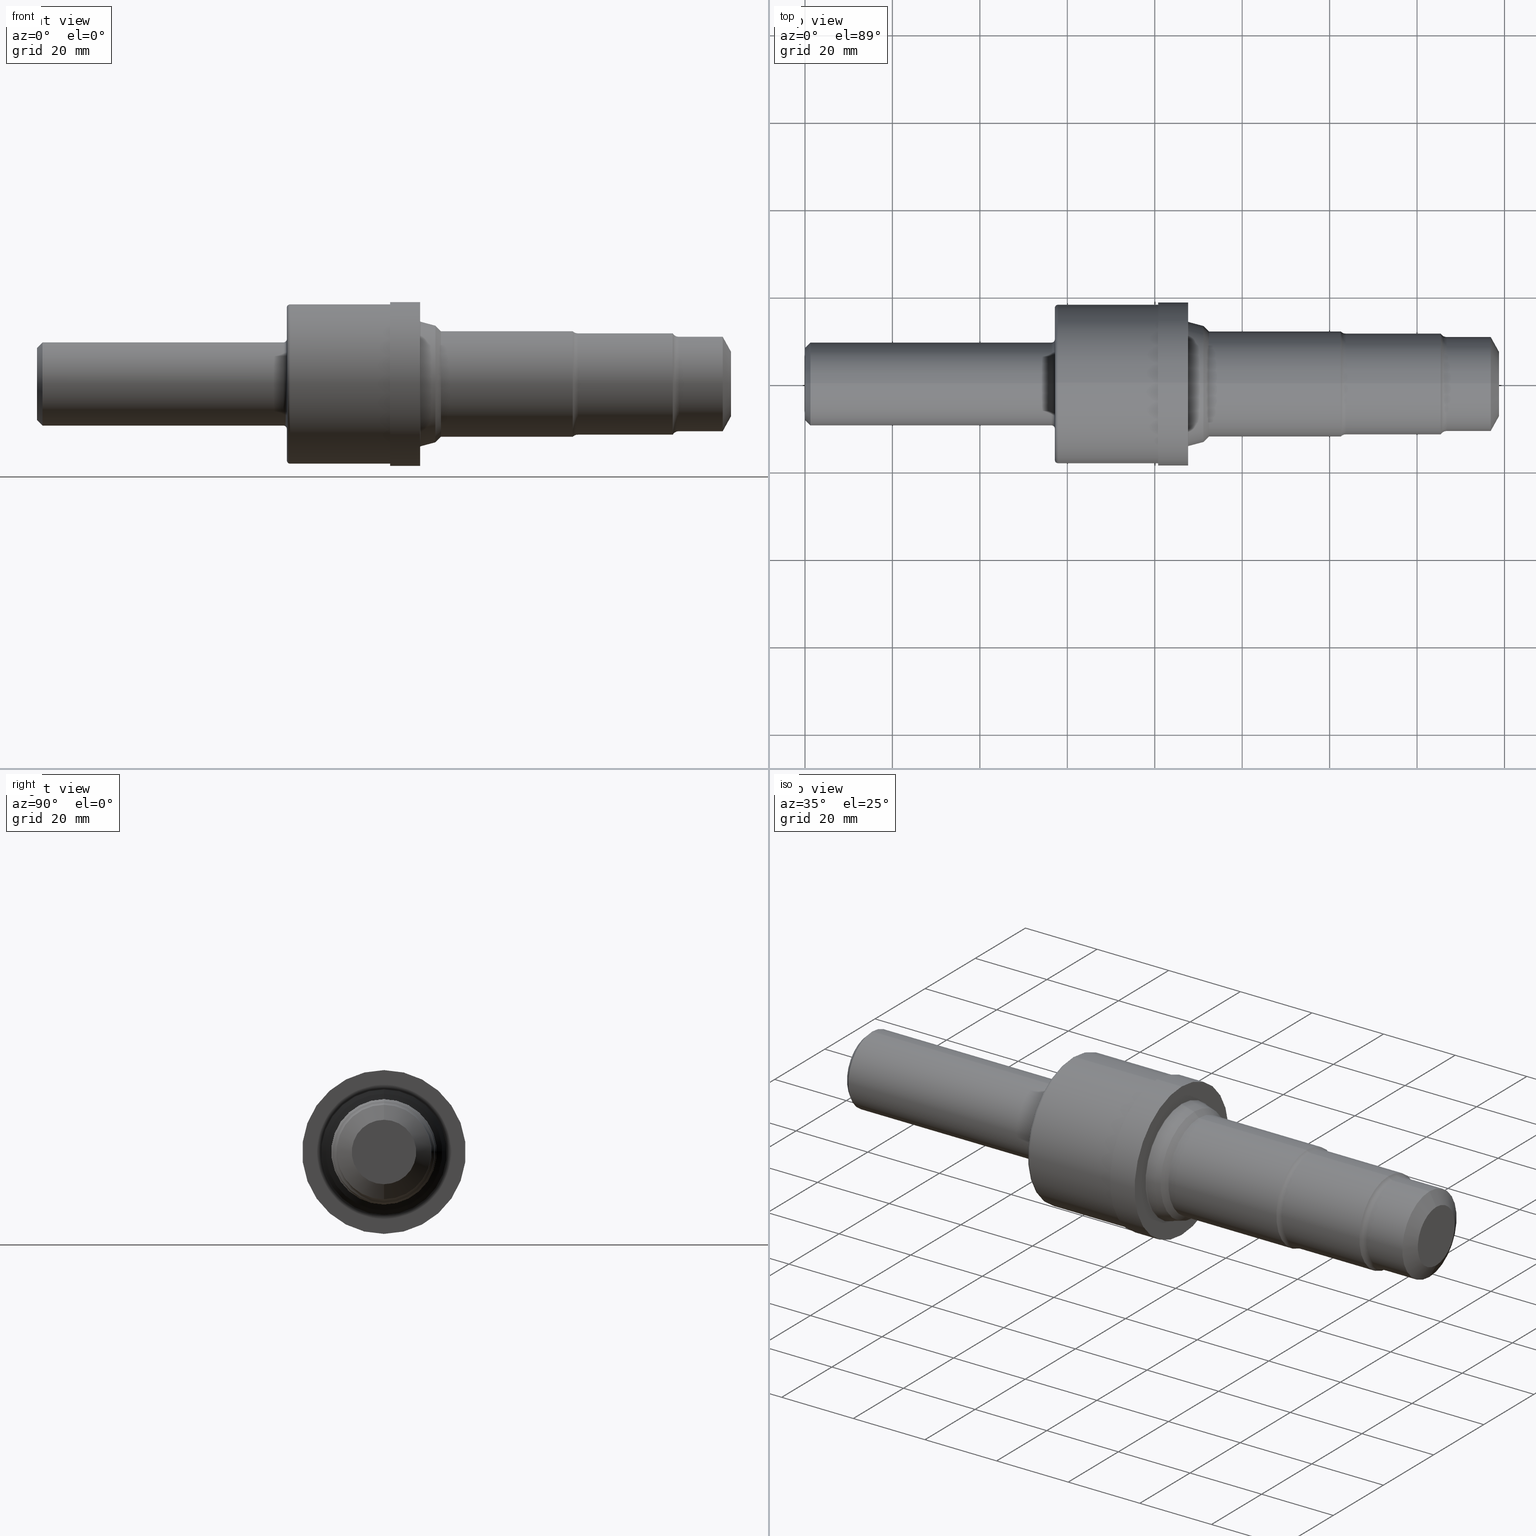
[diagram: canonical four-view strip — front | top / right | iso, engineering-drawing reading convention]
A machine part, canonical four-view strip (front | top / right | iso — engineering-drawing reading convention). The complete STEP part file that produces these views, byte-faithful:
ISO-10303-21;
HEADER;
FILE_DESCRIPTION (( 'STEP AP214' ),
    '1' );
FILE_NAME ('C-12-3-ROUGH-X8.STEP',
    '2020-02-03T22:08:16',
    ( '' ),
    ( '' ),
    'SwSTEP 2.0',
    'SolidWorks 2018',
    '' );
FILE_SCHEMA (( 'AUTOMOTIVE_DESIGN' ));
ENDSEC;

DATA;
#1 = CARTESIAN_POINT ( 'NONE',  ( 0.05000000000000000278, 4.590588526603853748E-17, 0.3748500000000000165 ) ) ;
#2 = DIRECTION ( 'NONE',  ( -1.000000000000000000, -0.0000000000000000000, -0.0000000000000000000 ) ) ;
#3 = AXIS2_PLACEMENT_3D ( 'NONE', #367, #142, #677 ) ;
#4 = AXIS2_PLACEMENT_3D ( 'NONE', #690, #40, #780 ) ;
#5 = CARTESIAN_POINT ( 'NONE',  ( 0.0000000000000000000, 0.0000000000000000000, 0.0000000000000000000 ) ) ;
#6 = VERTEX_POINT ( 'NONE', #834 ) ;
#7 = ORIENTED_EDGE ( 'NONE', *, *, #453, .T. ) ;
#8 = CARTESIAN_POINT ( 'NONE',  ( 4.825000000000000178, 5.817072295949927179E-17, -0.4749999999999999778 ) ) ;
#9 = CARTESIAN_POINT ( 'NONE',  ( 2.220000000000000195, 4.590588526603861143E-17, -0.3748500000000006271 ) ) ;
#10 = CIRCLE ( 'NONE', #272, 0.4563999999999999724 ) ;
#11 = CONICAL_SURFACE ( 'NONE', #803, 0.4749999999999999778, 0.7853981633974497223 ) ;
#12 = AXIS2_PLACEMENT_3D ( 'NONE', #438, #800, #446 ) ;
#13 = DIRECTION ( 'NONE',  ( -1.000000000000000000, -0.0000000000000000000, -0.0000000000000000000 ) ) ;
#14 = ORIENTED_EDGE ( 'NONE', *, *, #881, .F. ) ;
#15 = ORIENTED_EDGE ( 'NONE', *, *, #916, .F. ) ;
#16 = AXIS2_PLACEMENT_3D ( 'NONE', #291, #460, #650 ) ;
#17 = DIRECTION ( 'NONE',  ( 0.0000000000000000000, 0.0000000000000000000, 1.000000000000000000 ) ) ;
#18 = EDGE_LOOP ( 'NONE', ( #783, #298 ) ) ;
#19 = DIRECTION ( 'NONE',  ( 0.0000000000000000000, -1.224646799147353454E-16, 1.000000000000000000 ) ) ;
#20 = EDGE_CURVE ( 'NONE', #117, #68, #10, .T. ) ;
#21 = DIRECTION ( 'NONE',  ( 0.0000000000000000000, 0.0000000000000000000, 1.000000000000000000 ) ) ;
#22 = CIRCLE ( 'NONE', #534, 0.007500000000000193144 ) ;
#23 = DIRECTION ( 'NONE',  ( -1.000000000000000000, -0.0000000000000000000, -0.0000000000000000000 ) ) ;
#24 = CARTESIAN_POINT ( 'NONE',  ( 4.869276856256965935, 0.0000000000000000000, 0.0000000000000000000 ) ) ;
#25 = VERTEX_POINT ( 'NONE', #521 ) ;
#26 = MECHANICAL_DESIGN_GEOMETRIC_PRESENTATION_REPRESENTATION (  '', ( #845 ), #357 ) ;
#27 = ORIENTED_EDGE ( 'NONE', *, *, #470, .F. ) ;
#28 = DIRECTION ( 'NONE',  ( -0.0000000000000000000, 1.000000000000000000, 1.224646799147353207E-16 ) ) ;
#29 = VERTEX_POINT ( 'NONE', #293 ) ;
#30 = ORIENTED_EDGE ( 'NONE', *, *, #183, .T. ) ;
#31 = CIRCLE ( 'NONE', #693, 0.5677549524098421951 ) ;
#32 = AXIS2_PLACEMENT_3D ( 'NONE', #149, #450, #733 ) ;
#33 =( CONVERSION_BASED_UNIT ( 'INCH', #262 ) LENGTH_UNIT ( ) NAMED_UNIT ( #924 ) );
#34 = DIRECTION ( 'NONE',  ( -0.7071067811865464625, 0.0000000000000000000, 0.7071067811865484609 ) ) ;
#35 = EDGE_CURVE ( 'NONE', #288, #722, #726, .T. ) ;
#36 = ORIENTED_EDGE ( 'NONE', *, *, #20, .F. ) ;
#37 = AXIS2_PLACEMENT_3D ( 'NONE', #805, #469, #869 ) ;
#38 = CARTESIAN_POINT ( 'NONE',  ( 0.0000000000000000000, 0.0000000000000000000, 0.0000000000000000000 ) ) ;
#39 = AXIS2_PLACEMENT_3D ( 'NONE', #867, #523, #748 ) ;
#40 = DIRECTION ( 'NONE',  ( -1.000000000000000000, -0.0000000000000000000, -0.0000000000000000000 ) ) ;
#41 = LINE ( 'NONE', #81, #770 ) ;
#42 = DIMENSIONAL_EXPONENTS ( 1.000000000000000000, 0.0000000000000000000, 0.0000000000000000000, 0.0000000000000000000, 0.0000000000000000000, 0.0000000000000000000, 0.0000000000000000000 ) ;
#43 = EDGE_CURVE ( 'NONE', #25, #68, #906, .T. ) ;
#44 = ORIENTED_EDGE ( 'NONE', *, *, #590, .T. ) ;
#45 = AXIS2_PLACEMENT_3D ( 'NONE', #655, #824, #743 ) ;
#46 = DIRECTION ( 'NONE',  ( -1.000000000000000000, -0.0000000000000000000, -0.0000000000000000000 ) ) ;
#47 =( NAMED_UNIT ( * ) SI_UNIT ( $, .STERADIAN. ) SOLID_ANGLE_UNIT ( ) );
#48 = ORIENTED_EDGE ( 'NONE', *, *, #753, .T. ) ;
#49 = ADVANCED_BREP_SHAPE_REPRESENTATION ( 'C-12-3-ROUGH-X8', ( #482, #809 ), #664 ) ;
#50 = FACE_OUTER_BOUND ( 'NONE', #531, .T. ) ;
#51 = ADVANCED_FACE ( 'NONE', ( #394 ), #640, .T. ) ;
#52 = DIRECTION ( 'NONE',  ( 0.0000000000000000000, -1.000000000000000000, 0.0000000000000000000 ) ) ;
#53 = VERTEX_POINT ( 'NONE', #132 ) ;
#54 = EDGE_CURVE ( 'NONE', #768, #306, #330, .T. ) ;
#55 = CARTESIAN_POINT ( 'NONE',  ( 3.455558857161731723, 0.0000000000000000000, 0.0000000000000000000 ) ) ;
#56 = AXIS2_PLACEMENT_3D ( 'NONE', #600, #116, #878 ) ;
#57 = DIRECTION ( 'NONE',  ( -1.000000000000000000, -0.0000000000000000000, -0.0000000000000000000 ) ) ;
#58 = ADVANCED_FACE ( 'NONE', ( #140 ), #830, .T. ) ;
#59 = ORIENTED_EDGE ( 'NONE', *, *, #150, .T. ) ;
#60 = ORIENTED_EDGE ( 'NONE', *, *, #284, .T. ) ;
#61 = CARTESIAN_POINT ( 'NONE',  ( 0.0000000000000000000, 0.0000000000000000000, 0.0000000000000000000 ) ) ;
#62 = AXIS2_PLACEMENT_3D ( 'NONE', #588, #524, #798 ) ;
#63 = PLANE ( 'NONE',  #257 ) ;
#64 = ORIENTED_EDGE ( 'NONE', *, *, #150, .F. ) ;
#65 = ADVANCED_FACE ( 'NONE', ( #256 ), #457, .T. ) ;
#66 = DIRECTION ( 'NONE',  ( -1.000000000000000000, -0.0000000000000000000, -0.0000000000000000000 ) ) ;
#67 = DIRECTION ( 'NONE',  ( 0.7071067811865483499, 0.0000000000000000000, -0.7071067811865465735 ) ) ;
#68 = VERTEX_POINT ( 'NONE', #618 ) ;
#69 = CARTESIAN_POINT ( 'NONE',  ( 4.869276856256965935, 0.0000000000000000000, 0.0000000000000000000 ) ) ;
#70 = ORIENTED_EDGE ( 'NONE', *, *, #218, .F. ) ;
#71 = EDGE_CURVE ( 'NONE', #53, #567, #412, .T. ) ;
#72 = ORIENTED_EDGE ( 'NONE', *, *, #397, .T. ) ;
#73 = EDGE_CURVE ( 'NONE', #700, #819, #380, .T. ) ;
#74 = CARTESIAN_POINT ( 'NONE',  ( 0.0000000000000000000, 5.589287991308519741E-17, -0.4563999999999999724 ) ) ;
#75 = AXIS2_PLACEMENT_3D ( 'NONE', #473, #260, #617 ) ;
#76 = ORIENTED_EDGE ( 'NONE', *, *, #528, .T. ) ;
#77 = DIRECTION ( 'NONE',  ( -1.000000000000000000, -0.0000000000000000000, -0.0000000000000000000 ) ) ;
#78 = CONICAL_SURFACE ( 'NONE', #433, 0.3748500000000000165, 0.7853981633974470578 ) ;
#79 = DIRECTION ( 'NONE',  ( -1.000000000000000000, -0.0000000000000000000, -0.0000000000000000000 ) ) ;
#80 = VERTEX_POINT ( 'NONE', #321 ) ;
#81 = CARTESIAN_POINT ( 'NONE',  ( 0.0000000000000000000, 8.786840783882260143E-17, -0.7175000000000000266 ) ) ;
#82 = ORIENTED_EDGE ( 'NONE', *, *, #717, .F. ) ;
#83 = LINE ( 'NONE', #423, #649 ) ;
#84 = CARTESIAN_POINT ( 'NONE',  ( 6.175000000000000711, 5.209647483572841703E-17, -0.4254000000000000004 ) ) ;
#85 = EDGE_LOOP ( 'NONE', ( #265, #82, #177, #249 ) ) ;
#86 = EDGE_CURVE ( 'NONE', #739, #327, #565, .T. ) ;
#87 = CARTESIAN_POINT ( 'NONE',  ( 4.869276856256965935, 0.0000000000000000000, 0.4563999999999999724 ) ) ;
#88 = AXIS2_PLACEMENT_3D ( 'NONE', #560, #421, #273 ) ;
#89 = CARTESIAN_POINT ( 'NONE',  ( 0.0000000000000000000, 0.0000000000000000000, 0.4749999999999999778 ) ) ;
#90 = ORIENTED_EDGE ( 'NONE', *, *, #399, .T. ) ;
#91 = DIRECTION ( 'NONE',  ( 0.0000000000000000000, 0.0000000000000000000, 1.000000000000000000 ) ) ;
#92 =( CONVERSION_BASED_UNIT ( 'INCH', #439 ) LENGTH_UNIT ( ) NAMED_UNIT ( #187 ) );
#93 = EDGE_CURVE ( 'NONE', #948, #621, #732, .T. ) ;
#94 = PRODUCT_DEFINITION ( 'UNKNOWN', '', #499, #909 ) ;
#95 = ORIENTED_EDGE ( 'NONE', *, *, #220, .T. ) ;
#96 = VERTEX_POINT ( 'NONE', #1 ) ;
#97 = DIRECTION ( 'NONE',  ( -0.4848096202463349491, 0.0000000000000000000, 0.8746197071393968514 ) ) ;
#98 = CARTESIAN_POINT ( 'NONE',  ( 2.279999999999999805, 8.786840783882260143E-17, -0.7175000000000000266 ) ) ;
#99 = EDGE_CURVE ( 'NONE', #739, #662, #365, .T. ) ;
#100 = FACE_OUTER_BOUND ( 'NONE', #135, .T. ) ;
#101 = AXIS2_PLACEMENT_3D ( 'NONE', #324, #404, #759 ) ;
#102 = CARTESIAN_POINT ( 'NONE',  ( 3.588000000000000522, 0.0000000000000000000, 0.5250230114445050278 ) ) ;
#103 = DIRECTION ( 'NONE',  ( -1.000000000000000000, -0.0000000000000000000, -0.0000000000000000000 ) ) ;
#104 = AXIS2_PLACEMENT_3D ( 'NONE', #679, #46, #444 ) ;
#105 = FILL_AREA_STYLE ('',( #795 ) ) ;
#106 = ORIENTED_EDGE ( 'NONE', *, *, #183, .F. ) ;
#107 = ORIENTED_EDGE ( 'NONE', *, *, #303, .F. ) ;
#108 = DIRECTION ( 'NONE',  ( 0.0000000000000000000, 0.0000000000000000000, 1.000000000000000000 ) ) ;
#109 = VECTOR ( 'NONE', #605, 39.37007874015748143 ) ;
#110 = CIRCLE ( 'NONE', #152, 0.02999999999999995379 ) ;
#111 = AXIS2_PLACEMENT_3D ( 'NONE', #114, #418, #227 ) ;
#112 = ORIENTED_EDGE ( 'NONE', *, *, #373, .F. ) ;
#113 = DIRECTION ( 'NONE',  ( -1.000000000000000000, -0.0000000000000000000, -0.0000000000000000000 ) ) ;
#114 = CARTESIAN_POINT ( 'NONE',  ( 2.220000000000000195, 0.0000000000000000000, 0.0000000000000000000 ) ) ;
#115 = VERTEX_POINT ( 'NONE', #871 ) ;
#116 = DIRECTION ( 'NONE',  ( -1.000000000000000000, -0.0000000000000000000, -0.0000000000000000000 ) ) ;
#117 = VERTEX_POINT ( 'NONE', #87 ) ;
#118 = EDGE_LOOP ( 'NONE', ( #594, #832, #59, #267 ) ) ;
#119 = ADVANCED_FACE ( 'NONE', ( #625 ), #811, .T. ) ;
#120 = FACE_OUTER_BOUND ( 'NONE', #694, .T. ) ;
#121 = CARTESIAN_POINT ( 'NONE',  ( 5.778693575034636432, 0.0000000000000000000, 0.0000000000000000000 ) ) ;
#122 = ADVANCED_FACE ( 'NONE', ( #411 ), #134, .F. ) ;
#123 = APPLICATION_PROTOCOL_DEFINITION ( 'draft international standard', 'automotive_design', 1998, #936 ) ;
#124 = CIRCLE ( 'NONE', #16, 0.7374999999999999334 ) ;
#125 = AXIS2_PLACEMENT_3D ( 'NONE', #509, #735, #670 ) ;
#126 = ORIENTED_EDGE ( 'NONE', *, *, #784, .T. ) ;
#127 = ADVANCED_FACE ( 'NONE', ( #611 ), #368, .F. ) ;
#128 = CIRCLE ( 'NONE', #923, 0.4563999999999999724 ) ;
#129 =( CONVERSION_BASED_UNIT ( 'INCH', #920 ) LENGTH_UNIT ( ) NAMED_UNIT ( #42 ) );
#130 = CARTESIAN_POINT ( 'NONE',  ( 3.638023011444505350, 5.817072295949927179E-17, -0.4749999999999999778 ) ) ;
#131 = CIRCLE ( 'NONE', #794, 0.3748500000000006271 ) ;
#132 = CARTESIAN_POINT ( 'NONE',  ( 2.250000000000000000, 8.603143764010157568E-17, -0.6875000000000001110 ) ) ;
#133 = DIRECTION ( 'NONE',  ( -1.000000000000000000, -0.0000000000000000000, -0.0000000000000000000 ) ) ;
#134 = TOROIDAL_SURFACE ( 'NONE', #687, 0.4873999999999999444, 0.06200000000000010364 ) ;
#135 = EDGE_LOOP ( 'NONE', ( #475, #557, #60, #392 ) ) ;
#136 = ORIENTED_EDGE ( 'NONE', *, *, #373, .T. ) ;
#137 = EDGE_CURVE ( 'NONE', #724, #68, #604, .T. ) ;
#138 = CARTESIAN_POINT ( 'NONE',  ( 3.180000000000000604, 0.0000000000000000000, 0.0000000000000000000 ) ) ;
#139 = CARTESIAN_POINT ( 'NONE',  ( 3.180000000000000604, 0.0000000000000000000, 0.0000000000000000000 ) ) ;
#140 = FACE_OUTER_BOUND ( 'NONE', #568, .T. ) ;
#141 = FACE_OUTER_BOUND ( 'NONE', #157, .T. ) ;
#142 = DIRECTION ( 'NONE',  ( -1.000000000000000000, -0.0000000000000000000, -0.0000000000000000000 ) ) ;
#143 = DIRECTION ( 'NONE',  ( 0.0000000000000000000, 0.0000000000000000000, -1.000000000000000000 ) ) ;
#144 = EDGE_LOOP ( 'NONE', ( #27, #688, #583, #827 ) ) ;
#145 = AXIS2_PLACEMENT_3D ( 'NONE', #371, #744, #395 ) ;
#146 = AXIS2_PLACEMENT_3D ( 'NONE', #841, #764, #895 ) ;
#147 = DIRECTION ( 'NONE',  ( -1.000000000000000000, -0.0000000000000000000, -0.0000000000000000000 ) ) ;
#148 = CARTESIAN_POINT ( 'NONE',  ( 2.279999999999999805, 8.419446744138053762E-17, -0.6875000000000001110 ) ) ;
#149 = CARTESIAN_POINT ( 'NONE',  ( 3.455558857161731723, 0.0000000000000000000, 0.0000000000000000000 ) ) ;
#150 = EDGE_CURVE ( 'NONE', #422, #819, #926, .T. ) ;
#151 = CARTESIAN_POINT ( 'NONE',  ( 6.250000000000000000, 0.0000000000000000000, 0.0000000000000000000 ) ) ;
#152 = AXIS2_PLACEMENT_3D ( 'NONE', #326, #52, #613 ) ;
#153 = LINE ( 'NONE', #387, #908 ) ;
#154 = FACE_OUTER_BOUND ( 'NONE', #804, .T. ) ;
#155 = FACE_OUTER_BOUND ( 'NONE', #160, .T. ) ;
#156 = DIRECTION ( 'NONE',  ( -1.000000000000000000, -0.0000000000000000000, -0.0000000000000000000 ) ) ;
#157 = EDGE_LOOP ( 'NONE', ( #173, #666, #319, #879 ) ) ;
#158 = AXIS2_PLACEMENT_3D ( 'NONE', #236, #300, #665 ) ;
#159 = LINE ( 'NONE', #130, #825 ) ;
#160 = EDGE_LOOP ( 'NONE', ( #911, #511 ) ) ;
#161 = ORIENTED_EDGE ( 'NONE', *, *, #35, .F. ) ;
#162 = CARTESIAN_POINT ( 'NONE',  ( 3.588000000000000522, 0.0000000000000000000, 0.0000000000000000000 ) ) ;
#163 = CIRCLE ( 'NONE', #384, 0.06199999999999997874 ) ;
#164 = VERTEX_POINT ( 'NONE', #98 ) ;
#165 = CARTESIAN_POINT ( 'NONE',  ( 4.825000000000000178, 0.0000000000000000000, 0.0000000000000000000 ) ) ;
#166 = CARTESIAN_POINT ( 'NONE',  ( 3.450000000000000178, 0.0000000000000000000, 0.0000000000000000000 ) ) ;
#167 = DIRECTION ( 'NONE',  ( -1.000000000000000000, -0.0000000000000000000, -0.0000000000000000000 ) ) ;
#168 = EDGE_LOOP ( 'NONE', ( #44, #792, #608, #653 ) ) ;
#169 = CIRCLE ( 'NONE', #185, 0.7374999999999999334 ) ;
#170 = AXIS2_PLACEMENT_3D ( 'NONE', #148, #667, #593 ) ;
#171 = CYLINDRICAL_SURFACE ( 'NONE', #158, 0.7175000000000000266 ) ;
#172 = FACE_OUTER_BOUND ( 'NONE', #580, .T. ) ;
#173 = ORIENTED_EDGE ( 'NONE', *, *, #456, .T. ) ;
#174 = DIRECTION ( 'NONE',  ( -1.000000000000000000, -0.0000000000000000000, -0.0000000000000000000 ) ) ;
#175 = AXIS2_PLACEMENT_3D ( 'NONE', #24, #855, #938 ) ;
#176 = DIRECTION ( 'NONE',  ( -1.000000000000000000, 0.0000000000000000000, -0.0000000000000000000 ) ) ;
#177 = ORIENTED_EDGE ( 'NONE', *, *, #544, .T. ) ;
#178 = EDGE_LOOP ( 'NONE', ( #686, #539 ) ) ;
#179 = ORIENTED_EDGE ( 'NONE', *, *, #284, .F. ) ;
#180 = PRESENTATION_STYLE_ASSIGNMENT (( #645 ) ) ;
#181 = ORIENTED_EDGE ( 'NONE', *, *, #916, .T. ) ;
#182 = LINE ( 'NONE', #778, #741 ) ;
#183 = EDGE_CURVE ( 'NONE', #493, #263, #413, .T. ) ;
#184 = CARTESIAN_POINT ( 'NONE',  ( 4.825000000000000178, 0.0000000000000000000, 0.4749999999999999778 ) ) ;
#185 = AXIS2_PLACEMENT_3D ( 'NONE', #877, #435, #204 ) ;
#186 = EDGE_LOOP ( 'NONE', ( #126, #517, #201, #15 ) ) ;
#187 = DIMENSIONAL_EXPONENTS ( 1.000000000000000000, 0.0000000000000000000, 0.0000000000000000000, 0.0000000000000000000, 0.0000000000000000000, 0.0000000000000000000, 0.0000000000000000000 ) ;
#188 = ADVANCED_FACE ( 'NONE', ( #222 ), #872, .T. ) ;
#189 = AXIS2_PLACEMENT_3D ( 'NONE', #763, #289, #546 ) ;
#190 = CIRCLE ( 'NONE', #681, 0.6875000000000001110 ) ;
#191 = ORIENTED_EDGE ( 'NONE', *, *, #238, .F. ) ;
#192 = AXIS2_PLACEMENT_3D ( 'NONE', #5, #674, #226 ) ;
#193 = EDGE_LOOP ( 'NONE', ( #481, #851, #370, #455 ) ) ;
#194 = ADVANCED_FACE ( 'NONE', ( #708 ), #555, .T. ) ;
#195 = DIRECTION ( 'NONE',  ( 1.000000000000000000, 0.0000000000000000000, 0.0000000000000000000 ) ) ;
#196 = ORIENTED_EDGE ( 'NONE', *, *, #696, .F. ) ;
#197 = CIRCLE ( 'NONE', #125, 0.4749999999999999778 ) ;
#198 = PLANE ( 'NONE',  #88 ) ;
#199 = ADVANCED_FACE ( 'NONE', ( #447 ), #266, .F. ) ;
#200 = AXIS2_PLACEMENT_3D ( 'NONE', #243, #935, #239 ) ;
#201 = ORIENTED_EDGE ( 'NONE', *, *, #590, .F. ) ;
#202 = DIRECTION ( 'NONE',  ( -1.000000000000000000, -0.0000000000000000000, -0.0000000000000000000 ) ) ;
#203 = VERTEX_POINT ( 'NONE', #884 ) ;
#204 = DIRECTION ( 'NONE',  ( 0.0000000000000000000, 0.0000000000000000000, 1.000000000000000000 ) ) ;
#205 = DIRECTION ( 'NONE',  ( 0.0000000000000000000, 0.0000000000000000000, 1.000000000000000000 ) ) ;
#206 = ADVANCED_FACE ( 'NONE', ( #769, #172 ), #894, .F. ) ;
#207 = ORIENTED_EDGE ( 'NONE', *, *, #839, .F. ) ;
#208 = DIRECTION ( 'NONE',  ( 0.0000000000000000000, 0.0000000000000000000, -1.000000000000000000 ) ) ;
#209 = AXIS2_PLACEMENT_3D ( 'NONE', #738, #579, #806 ) ;
#210 = DIRECTION ( 'NONE',  ( 0.0000000000000000000, 0.0000000000000000000, 1.000000000000000000 ) ) ;
#211 = CARTESIAN_POINT ( 'NONE',  ( 3.180000000000000604, 0.7175000000000000266, 0.0000000000000000000 ) ) ;
#212 = ADVANCED_FACE ( 'NONE', ( #361 ), #420, .F. ) ;
#213 = CARTESIAN_POINT ( 'NONE',  ( 6.250000000000000000, 0.0000000000000000000, 0.0000000000000000000 ) ) ;
#214 = EDGE_CURVE ( 'NONE', #436, #96, #929, .T. ) ;
#215 = PLANE ( 'NONE',  #866 ) ;
#216 = CIRCLE ( 'NONE', #941, 0.3248500000000001386 ) ;
#217 = CIRCLE ( 'NONE', #414, 0.5605105087126740493 ) ;
#218 = EDGE_CURVE ( 'NONE', #115, #948, #836, .T. ) ;
#219 = CARTESIAN_POINT ( 'NONE',  ( 6.250000000000000000, 0.0000000000000000000, 0.0000000000000000000 ) ) ;
#220 = EDGE_CURVE ( 'NONE', #610, #164, #41, .T. ) ;
#221 = DIRECTION ( 'NONE',  ( -0.4848096202463349491, 1.071100224819457965E-16, -0.8746197071393968514 ) ) ;
#222 = FACE_OUTER_BOUND ( 'NONE', #816, .T. ) ;
#223 = ORIENTED_EDGE ( 'NONE', *, *, #43, .F. ) ;
#224 = ORIENTED_EDGE ( 'NONE', *, *, #654, .F. ) ;
#225 = EDGE_CURVE ( 'NONE', #442, #117, #83, .T. ) ;
#226 = DIRECTION ( 'NONE',  ( 0.0000000000000000000, 0.0000000000000000000, 1.000000000000000000 ) ) ;
#227 = DIRECTION ( 'NONE',  ( 0.0000000000000000000, 0.0000000000000000000, 1.000000000000000000 ) ) ;
#228 = FACE_BOUND ( 'NONE', #691, .T. ) ;
#229 = CIRCLE ( 'NONE', #697, 0.7374999999999999334 ) ;
#230 = DIRECTION ( 'NONE',  ( 0.0000000000000000000, -1.224646799147352468E-16, 1.000000000000000000 ) ) ;
#231 = DIRECTION ( 'NONE',  ( -1.000000000000000000, -0.0000000000000000000, -0.0000000000000000000 ) ) ;
#232 = DIRECTION ( 'NONE',  ( -1.000000000000000000, -0.0000000000000000000, -0.0000000000000000000 ) ) ;
#233 = ORIENTED_EDGE ( 'NONE', *, *, #318, .T. ) ;
#234 = AXIS2_PLACEMENT_3D ( 'NONE', #745, #66, #290 ) ;
#235 = DIRECTION ( 'NONE',  ( -0.0000000000000000000, 1.000000000000000000, 1.224646799147353207E-16 ) ) ;
#236 = CARTESIAN_POINT ( 'NONE',  ( 0.0000000000000000000, 0.0000000000000000000, 0.0000000000000000000 ) ) ;
#237 = CARTESIAN_POINT ( 'NONE',  ( 0.0000000000000000000, 4.590588526603858678E-17, -0.3748500000000003496 ) ) ;
#238 = EDGE_CURVE ( 'NONE', #327, #422, #603, .T. ) ;
#239 = DIRECTION ( 'NONE',  ( 0.0000000000000000000, 0.0000000000000000000, 1.000000000000000000 ) ) ;
#240 = EDGE_CURVE ( 'NONE', #699, #80, #918, .T. ) ;
#241 = VERTEX_POINT ( 'NONE', #883 ) ;
#242 =( NAMED_UNIT ( * ) PLANE_ANGLE_UNIT ( ) SI_UNIT ( $, .RADIAN. ) );
#243 = CARTESIAN_POINT ( 'NONE',  ( 0.0000000000000000000, 0.0000000000000000000, 0.0000000000000000000 ) ) ;
#244 = DIRECTION ( 'NONE',  ( -0.0000000000000000000, 1.000000000000000000, 1.224646799147353207E-16 ) ) ;
#245 =( NAMED_UNIT ( * ) SI_UNIT ( $, .STERADIAN. ) SOLID_ANGLE_UNIT ( ) );
#246 = AXIS2_PLACEMENT_3D ( 'NONE', #294, #378, #944 ) ;
#247 = DIRECTION ( 'NONE',  ( 0.0000000000000000000, 0.0000000000000000000, 1.000000000000000000 ) ) ;
#248 = DIRECTION ( 'NONE',  ( -1.000000000000000000, -0.0000000000000000000, -0.0000000000000000000 ) ) ;
#249 = ORIENTED_EDGE ( 'NONE', *, *, #20, .T. ) ;
#250 = DIRECTION ( 'NONE',  ( -1.000000000000000000, -0.0000000000000000000, -0.0000000000000000000 ) ) ;
#251 = AXIS2_PLACEMENT_3D ( 'NONE', #835, #538, #320 ) ;
#252 = DIRECTION ( 'NONE',  ( -1.000000000000000000, -0.0000000000000000000, -0.0000000000000000000 ) ) ;
#253 = CIRCLE ( 'NONE', #947, 0.4749999999999999778 ) ;
#254 = ORIENTED_EDGE ( 'NONE', *, *, #494, .F. ) ;
#255 = ORIENTED_EDGE ( 'NONE', *, *, #612, .T. ) ;
#256 = FACE_OUTER_BOUND ( 'NONE', #430, .T. ) ;
#257 = AXIS2_PLACEMENT_3D ( 'NONE', #211, #636, #350 ) ;
#258 = ORIENTED_EDGE ( 'NONE', *, *, #407, .F. ) ;
#259 = ORIENTED_EDGE ( 'NONE', *, *, #468, .T. ) ;
#260 = DIRECTION ( 'NONE',  ( -1.000000000000000000, -0.0000000000000000000, -0.0000000000000000000 ) ) ;
#261 = AXIS2_PLACEMENT_3D ( 'NONE', #121, #347, #772 ) ;
#262 = LENGTH_MEASURE_WITH_UNIT ( LENGTH_MEASURE( 0.02539999999999999897 ), #634 );
#263 = VERTEX_POINT ( 'NONE', #750 ) ;
#264 = SURFACE_SIDE_STYLE ('',( #684 ) ) ;
#265 = ORIENTED_EDGE ( 'NONE', *, *, #137, .F. ) ;
#266 = TOROIDAL_SURFACE ( 'NONE', #858, 0.5677549524098421951, 0.007500000000000175797 ) ;
#267 = ORIENTED_EDGE ( 'NONE', *, *, #757, .F. ) ;
#268 = CARTESIAN_POINT ( 'NONE',  ( 2.220000000000000195, 0.0000000000000000000, 0.0000000000000000000 ) ) ;
#269 = ORIENTED_EDGE ( 'NONE', *, *, #93, .T. ) ;
#270 = VERTEX_POINT ( 'NONE', #184 ) ;
#271 = LINE ( 'NONE', #704, #672 ) ;
#272 = AXIS2_PLACEMENT_3D ( 'NONE', #388, #315, #91 ) ;
#273 = DIRECTION ( 'NONE',  ( -0.0000000000000000000, 0.0000000000000000000, 1.000000000000000000 ) ) ;
#274 = EDGE_LOOP ( 'NONE', ( #313, #937, #136, #616 ) ) ;
#275 = ORIENTED_EDGE ( 'NONE', *, *, #355, .T. ) ;
#276 = EDGE_CURVE ( 'NONE', #386, #621, #217, .T. ) ;
#277 = CARTESIAN_POINT ( 'NONE',  ( 2.279999999999999805, 0.0000000000000000000, 0.0000000000000000000 ) ) ;
#278 = AXIS2_PLACEMENT_3D ( 'NONE', #577, #440, #940 ) ;
#279 = VECTOR ( 'NONE', #592, 39.37007874015748143 ) ;
#280 = DIRECTION ( 'NONE',  ( 0.0000000000000000000, 0.0000000000000000000, 1.000000000000000000 ) ) ;
#281 = ORIENTED_EDGE ( 'NONE', *, *, #652, .T. ) ;
#282 = ADVANCED_FACE ( 'NONE', ( #228, #815 ), #63, .F. ) ;
#283 = CARTESIAN_POINT ( 'NONE',  ( 3.450000000000000622, 0.0000000000000000000, 0.7374999999999999334 ) ) ;
#284 = EDGE_CURVE ( 'NONE', #29, #436, #310, .T. ) ;
#285 = LINE ( 'NONE', #761, #852 ) ;
#286 = CARTESIAN_POINT ( 'NONE',  ( 3.588000000000000522, 0.0000000000000000000, 0.5250230114445050278 ) ) ;
#287 = DIRECTION ( 'NONE',  ( -1.000000000000000000, -0.0000000000000000000, -0.0000000000000000000 ) ) ;
#288 = VERTEX_POINT ( 'NONE', #9 ) ;
#289 = DIRECTION ( 'NONE',  ( 0.0000000000000000000, -1.000000000000000000, 0.0000000000000000000 ) ) ;
#290 = DIRECTION ( 'NONE',  ( 0.0000000000000000000, 0.0000000000000000000, 1.000000000000000000 ) ) ;
#291 = CARTESIAN_POINT ( 'NONE',  ( 3.450000000000000622, 0.0000000000000000000, 0.0000000000000000000 ) ) ;
#292 = AXIS2_PLACEMENT_3D ( 'NONE', #474, #235, #230 ) ;
#293 = CARTESIAN_POINT ( 'NONE',  ( 0.0000000000000000000, 0.0000000000000000000, -0.3248500000000001386 ) ) ;
#294 = CARTESIAN_POINT ( 'NONE',  ( 0.0000000000000000000, 0.0000000000000000000, 0.0000000000000000000 ) ) ;
#295 = ORIENTED_EDGE ( 'NONE', *, *, #717, .T. ) ;
#296 = DIRECTION ( 'NONE',  ( -0.0000000000000000000, 1.000000000000000000, 1.224646799147353207E-16 ) ) ;
#297 = ORIENTED_EDGE ( 'NONE', *, *, #753, .F. ) ;
#298 = ORIENTED_EDGE ( 'NONE', *, *, #503, .F. ) ;
#299 = CARTESIAN_POINT ( 'NONE',  ( 2.220000000000000195, 0.0000000000000000000, 0.3748500000000006271 ) ) ;
#300 = DIRECTION ( 'NONE',  ( -1.000000000000000000, -0.0000000000000000000, -0.0000000000000000000 ) ) ;
#301 = FACE_OUTER_BOUND ( 'NONE', #391, .T. ) ;
#302 = AXIS2_PLACEMENT_3D ( 'NONE', #360, #103, #928 ) ;
#303 = EDGE_CURVE ( 'NONE', #680, #80, #602, .T. ) ;
#304 = CARTESIAN_POINT ( 'NONE',  ( 2.250000000000000000, 0.0000000000000000000, 0.4048500000000005983 ) ) ;
#305 = ORIENTED_EDGE ( 'NONE', *, *, #86, .F. ) ;
#306 = VERTEX_POINT ( 'NONE', #304 ) ;
#307 = AXIS2_PLACEMENT_3D ( 'NONE', #69, #147, #946 ) ;
#308 = DIRECTION ( 'NONE',  ( 0.0000000000000000000, 0.0000000000000000000, 1.000000000000000000 ) ) ;
#309 = DIRECTION ( 'NONE',  ( 0.0000000000000000000, 0.0000000000000000000, 1.000000000000000000 ) ) ;
#310 = LINE ( 'NONE', #527, #620 ) ;
#311 = CIRCLE ( 'NONE', #882, 0.4048500000000005983 ) ;
#312 = LINE ( 'NONE', #520, #333 ) ;
#313 = ORIENTED_EDGE ( 'NONE', *, *, #490, .F. ) ;
#314 = AXIS2_PLACEMENT_3D ( 'NONE', #575, #77, #861 ) ;
#315 = DIRECTION ( 'NONE',  ( -1.000000000000000000, -0.0000000000000000000, -0.0000000000000000000 ) ) ;
#316 = CARTESIAN_POINT ( 'NONE',  ( 3.638023011444505350, 6.123374900196049831E-17, -0.4749999999999999778 ) ) ;
#317 = DIRECTION ( 'NONE',  ( 1.000000000000000000, 0.0000000000000000000, 0.0000000000000000000 ) ) ;
#318 = EDGE_CURVE ( 'NONE', #567, #53, #190, .T. ) ;
#319 = ORIENTED_EDGE ( 'NONE', *, *, #340, .F. ) ;
#320 = DIRECTION ( 'NONE',  ( 0.0000000000000000000, 0.0000000000000000000, -1.000000000000000000 ) ) ;
#321 = CARTESIAN_POINT ( 'NONE',  ( 3.180000000000000604, 0.0000000000000000000, 0.7374999999999999334 ) ) ;
#322 = CARTESIAN_POINT ( 'NONE',  ( 5.778693575034636432, 5.968928499044198394E-17, -0.4873999999999999444 ) ) ;
#323 = CIRCLE ( 'NONE', #714, 0.4563999999999999724 ) ;
#324 = CARTESIAN_POINT ( 'NONE',  ( 6.175000000000000711, 0.0000000000000000000, 0.0000000000000000000 ) ) ;
#325 = EDGE_CURVE ( 'NONE', #776, #115, #159, .T. ) ;
#326 = CARTESIAN_POINT ( 'NONE',  ( 2.279999999999999805, 0.0000000000000000000, 0.6875000000000001110 ) ) ;
#327 = VERTEX_POINT ( 'NONE', #84 ) ;
#328 = AXIS2_PLACEMENT_3D ( 'NONE', #213, #449, #591 ) ;
#329 = ORIENTED_EDGE ( 'NONE', *, *, #325, .F. ) ;
#330 = CIRCLE ( 'NONE', #189, 0.02999999999999995379 ) ;
#331 = CARTESIAN_POINT ( 'NONE',  ( 6.175000000000000711, 0.0000000000000000000, 0.0000000000000000000 ) ) ;
#332 = LINE ( 'NONE', #237, #109 ) ;
#333 = VECTOR ( 'NONE', #57, 39.37007874015748143 ) ;
#334 = CARTESIAN_POINT ( 'NONE',  ( 2.220000000000000195, 0.0000000000000000000, 0.0000000000000000000 ) ) ;
#335 = EDGE_CURVE ( 'NONE', #724, #776, #389, .T. ) ;
#336 = DIRECTION ( 'NONE',  ( 0.0000000000000000000, 0.0000000000000000000, 1.000000000000000000 ) ) ;
#337 = ORIENTED_EDGE ( 'NONE', *, *, #54, .T. ) ;
#338 = TOROIDAL_SURFACE ( 'NONE', #912, 0.5677549524098421951, 0.007500000000000175797 ) ;
#339 = DIRECTION ( 'NONE',  ( -1.000000000000000000, -0.0000000000000000000, -0.0000000000000000000 ) ) ;
#340 = EDGE_CURVE ( 'NONE', #621, #386, #537, .T. ) ;
#341 = DIRECTION ( 'NONE',  ( 0.0000000000000000000, 0.0000000000000000000, 1.000000000000000000 ) ) ;
#342 = AXIS2_PLACEMENT_3D ( 'NONE', #38, #886, #308 ) ;
#343 = TOROIDAL_SURFACE ( 'NONE', #261, 0.4873999999999999444, 0.06200000000000010364 ) ;
#344 = DIRECTION ( 'NONE',  ( -0.0000000000000000000, 0.0000000000000000000, 1.000000000000000000 ) ) ;
#345 = FACE_OUTER_BOUND ( 'NONE', #274, .T. ) ;
#346 = ADVANCED_FACE ( 'NONE', ( #155 ), #215, .F. ) ;
#347 = DIRECTION ( 'NONE',  ( -1.000000000000000000, -0.0000000000000000000, -0.0000000000000000000 ) ) ;
#348 =( NAMED_UNIT ( * ) PLANE_ANGLE_UNIT ( ) SI_UNIT ( $, .RADIAN. ) );
#349 = ADVANCED_FACE ( 'NONE', ( #345 ), #338, .F. ) ;
#350 = DIRECTION ( 'NONE',  ( 0.0000000000000000000, 0.0000000000000000000, -1.000000000000000000 ) ) ;
#351 = CARTESIAN_POINT ( 'NONE',  ( 3.455558857161731723, 0.0000000000000000000, 0.5605105087126740493 ) ) ;
#352 = EDGE_CURVE ( 'NONE', #29, #942, #564, .T. ) ;
#353 = DIRECTION ( 'NONE',  ( 0.0000000000000000000, 0.0000000000000000000, 1.000000000000000000 ) ) ;
#354 = TOROIDAL_SURFACE ( 'NONE', #146, 0.5183999999999999719, 0.06199999999999994404 ) ;
#355 = EDGE_CURVE ( 'NONE', #241, #680, #124, .T. ) ;
#356 = CARTESIAN_POINT ( 'NONE',  ( 5.778693575034636432, 5.399467737440679798E-17, -0.4253999999999998338 ) ) ;
#357 =( GEOMETRIC_REPRESENTATION_CONTEXT ( 3 ) GLOBAL_UNCERTAINTY_ASSIGNED_CONTEXT ( ( #598 ) ) GLOBAL_UNIT_ASSIGNED_CONTEXT ( ( #33, #348, #47 ) ) REPRESENTATION_CONTEXT ( 'NONE', 'WORKASPACE' ) );
#358 = CIRCLE ( 'NONE', #787, 0.3748500000000000165 ) ;
#359 = ADVANCED_FACE ( 'NONE', ( #822 ), #171, .T. ) ;
#360 = CARTESIAN_POINT ( 'NONE',  ( 3.180000000000000604, 0.0000000000000000000, 0.0000000000000000000 ) ) ;
#361 = FACE_OUTER_BOUND ( 'NONE', #85, .T. ) ;
#362 = ORIENTED_EDGE ( 'NONE', *, *, #407, .T. ) ;
#363 = CARTESIAN_POINT ( 'NONE',  ( 0.0000000000000000000, 0.0000000000000000000, 0.3748500000000003496 ) ) ;
#364 = DIRECTION ( 'NONE',  ( 0.0000000000000000000, 0.0000000000000000000, -1.000000000000000000 ) ) ;
#365 = CIRCLE ( 'NONE', #419, 0.2900964183546431707 ) ;
#366 = ADVANCED_FACE ( 'NONE', ( #633 ), #755, .T. ) ;
#367 = CARTESIAN_POINT ( 'NONE',  ( 5.778693575034636432, 0.0000000000000000000, 0.0000000000000000000 ) ) ;
#368 = TOROIDAL_SURFACE ( 'NONE', #12, 0.4048500000000005983, 0.02999999999999995379 ) ;
#369 = CARTESIAN_POINT ( 'NONE',  ( 3.450000000000000178, 0.0000000000000000000, 0.0000000000000000000 ) ) ;
#370 = ORIENTED_EDGE ( 'NONE', *, *, #676, .T. ) ;
#371 = CARTESIAN_POINT ( 'NONE',  ( 0.0000000000000000000, 0.0000000000000000000, 0.0000000000000000000 ) ) ;
#372 = CARTESIAN_POINT ( 'NONE',  ( 5.725000000000000533, 0.0000000000000000000, 0.4563999999999999724 ) ) ;
#373 = EDGE_CURVE ( 'NONE', #504, #621, #934, .T. ) ;
#374 = FACE_OUTER_BOUND ( 'NONE', #178, .T. ) ;
#375 = DIRECTION ( 'NONE',  ( 0.0000000000000000000, -1.224646799147352468E-16, 1.000000000000000000 ) ) ;
#376 = CARTESIAN_POINT ( 'NONE',  ( 0.0000000000000000000, 0.0000000000000000000, 0.0000000000000000000 ) ) ;
#377 = CLOSED_SHELL ( 'NONE', ( #437, #727, #122, #51, #786, #194, #427, #576, #199, #432, #359, #581, #127, #366, #119, #346, #639, #730, #496, #206, #58, #188, #282, #789, #647, #349, #570, #716, #498, #212, #65, #561, #719, #661, #508 ) ) ;
#378 = DIRECTION ( 'NONE',  ( -1.000000000000000000, -0.0000000000000000000, -0.0000000000000000000 ) ) ;
#379 = DIRECTION ( 'NONE',  ( 1.000000000000000000, 0.0000000000000000000, 0.0000000000000000000 ) ) ;
#380 = LINE ( 'NONE', #943, #635 ) ;
#381 = PRODUCT ( 'C-12-3-ROUGH-X8', 'C-12-3-ROUGH-X8', '', ( #801 ) ) ;
#382 = FACE_OUTER_BOUND ( 'NONE', #168, .T. ) ;
#383 = CIRCLE ( 'NONE', #930, 0.7175000000000000266 ) ;
#384 = AXIS2_PLACEMENT_3D ( 'NONE', #403, #429, #416 ) ;
#385 = DIRECTION ( 'NONE',  ( -1.000000000000000000, -0.0000000000000000000, -0.0000000000000000000 ) ) ;
#386 = VERTEX_POINT ( 'NONE', #495 ) ;
#387 = CARTESIAN_POINT ( 'NONE',  ( 3.588000000000000522, 6.429677504442172483E-17, -0.5250230114445050278 ) ) ;
#388 = CARTESIAN_POINT ( 'NONE',  ( 4.869276856256965935, 0.0000000000000000000, 0.0000000000000000000 ) ) ;
#389 = LINE ( 'NONE', #711, #907 ) ;
#390 = EDGE_CURVE ( 'NONE', #768, #288, #572, .T. ) ;
#391 = EDGE_LOOP ( 'NONE', ( #305, #751, #181, #897 ) ) ;
#392 = ORIENTED_EDGE ( 'NONE', *, *, #214, .T. ) ;
#393 = SURFACE_STYLE_FILL_AREA ( #749 ) ;
#394 = FACE_OUTER_BOUND ( 'NONE', #589, .T. ) ;
#395 = DIRECTION ( 'NONE',  ( 0.0000000000000000000, 0.0000000000000000000, 1.000000000000000000 ) ) ;
#396 = CIRCLE ( 'NONE', #175, 0.4563999999999999724 ) ;
#397 = EDGE_CURVE ( 'NONE', #96, #436, #358, .T. ) ;
#398 = DIRECTION ( 'NONE',  ( -1.000000000000000000, -0.0000000000000000000, -0.0000000000000000000 ) ) ;
#399 = EDGE_CURVE ( 'NONE', #263, #164, #553, .T. ) ;
#400 = ORIENTED_EDGE ( 'NONE', *, *, #552, .T. ) ;
#401 = UNCERTAINTY_MEASURE_WITH_UNIT (LENGTH_MEASURE( 1.000000000000000082E-05 ), #129, 'distance_accuracy_value', 'NONE');
#402 = AXIS2_PLACEMENT_3D ( 'NONE', #268, #252, #247 ) ;
#403 = CARTESIAN_POINT ( 'NONE',  ( 4.869276856256965935, 0.0000000000000000000, 0.5183999999999999719 ) ) ;
#404 = DIRECTION ( 'NONE',  ( -1.000000000000000000, -0.0000000000000000000, -0.0000000000000000000 ) ) ;
#405 = CIRCLE ( 'NONE', #39, 0.4749999999999999778 ) ;
#406 = PLANE ( 'NONE',  #777 ) ;
#407 = EDGE_CURVE ( 'NONE', #610, #493, #383, .T. ) ;
#408 = ORIENTED_EDGE ( 'NONE', *, *, #849, .T. ) ;
#409 = AXIS2_PLACEMENT_3D ( 'NONE', #631, #339, #336 ) ;
#410 = DIRECTION ( 'NONE',  ( -1.000000000000000000, -0.0000000000000000000, -0.0000000000000000000 ) ) ;
#411 = FACE_OUTER_BOUND ( 'NONE', #118, .T. ) ;
#412 = CIRCLE ( 'NONE', #601, 0.6875000000000001110 ) ;
#413 = LINE ( 'NONE', #458, #279 ) ;
#414 = AXIS2_PLACEMENT_3D ( 'NONE', #55, #756, #558 ) ;
#415 = ORIENTED_EDGE ( 'NONE', *, *, #218, .T. ) ;
#416 = DIRECTION ( 'NONE',  ( 0.0000000000000000000, 0.0000000000000000000, -1.000000000000000000 ) ) ;
#417 = CIRCLE ( 'NONE', #302, 0.7175000000000000266 ) ;
#418 = DIRECTION ( 'NONE',  ( -1.000000000000000000, -0.0000000000000000000, -0.0000000000000000000 ) ) ;
#419 = AXIS2_PLACEMENT_3D ( 'NONE', #151, #767, #17 ) ;
#420 = TOROIDAL_SURFACE ( 'NONE', #307, 0.5183999999999999719, 0.06199999999999994404 ) ;
#421 = DIRECTION ( 'NONE',  ( -1.000000000000000000, 0.0000000000000000000, -0.0000000000000000000 ) ) ;
#422 = VERTEX_POINT ( 'NONE', #356 ) ;
#423 = CARTESIAN_POINT ( 'NONE',  ( 0.0000000000000000000, 0.0000000000000000000, 0.4563999999999999724 ) ) ;
#424 = ORIENTED_EDGE ( 'NONE', *, *, #781, .F. ) ;
#425 = DIRECTION ( 'NONE',  ( -1.000000000000000000, -0.0000000000000000000, -0.0000000000000000000 ) ) ;
#426 = AXIS2_PLACEMENT_3D ( 'NONE', #692, #167, #905 ) ;
#427 = ADVANCED_FACE ( 'NONE', ( #729 ), #703, .T. ) ;
#428 = CONICAL_SURFACE ( 'NONE', #328, 0.2900964183546431707, 1.064650843716543394 ) ;
#429 = DIRECTION ( 'NONE',  ( 0.0000000000000000000, -1.000000000000000000, 0.0000000000000000000 ) ) ;
#430 = EDGE_LOOP ( 'NONE', ( #223, #255, #632, #771 ) ) ;
#431 = DIRECTION ( 'NONE',  ( 0.0000000000000000000, 0.0000000000000000000, 1.000000000000000000 ) ) ;
#432 = ADVANCED_FACE ( 'NONE', ( #154 ), #535, .T. ) ;
#433 = AXIS2_PLACEMENT_3D ( 'NONE', #545, #195, #785 ) ;
#434 = DIRECTION ( 'NONE',  ( -1.000000000000000000, -0.0000000000000000000, -0.0000000000000000000 ) ) ;
#435 = DIRECTION ( 'NONE',  ( -1.000000000000000000, -0.0000000000000000000, -0.0000000000000000000 ) ) ;
#436 = VERTEX_POINT ( 'NONE', #516 ) ;
#437 = ADVANCED_FACE ( 'NONE', ( #507 ), #868, .T. ) ;
#438 = CARTESIAN_POINT ( 'NONE',  ( 2.220000000000000195, 0.0000000000000000000, 0.0000000000000000000 ) ) ;
#439 = LENGTH_MEASURE_WITH_UNIT ( LENGTH_MEASURE( 0.02539999999999999897 ), #466 );
#440 = DIRECTION ( 'NONE',  ( -1.000000000000000000, -0.0000000000000000000, -0.0000000000000000000 ) ) ;
#441 = CARTESIAN_POINT ( 'NONE',  ( 3.457500000000000462, 0.0000000000000000000, 0.0000000000000000000 ) ) ;
#442 = VERTEX_POINT ( 'NONE', #372 ) ;
#443 = DIRECTION ( 'NONE',  ( -1.000000000000000000, -0.0000000000000000000, -0.0000000000000000000 ) ) ;
#444 = DIRECTION ( 'NONE',  ( 0.0000000000000000000, 0.0000000000000000000, 1.000000000000000000 ) ) ;
#445 = AXIS2_PLACEMENT_3D ( 'NONE', #808, #673, #513 ) ;
#446 = DIRECTION ( 'NONE',  ( 0.0000000000000000000, 0.0000000000000000000, 1.000000000000000000 ) ) ;
#447 = FACE_OUTER_BOUND ( 'NONE', #522, .T. ) ;
#448 = ORIENTED_EDGE ( 'NONE', *, *, #915, .F. ) ;
#449 = DIRECTION ( 'NONE',  ( -1.000000000000000000, -0.0000000000000000000, -0.0000000000000000000 ) ) ;
#450 = DIRECTION ( 'NONE',  ( -1.000000000000000000, -0.0000000000000000000, -0.0000000000000000000 ) ) ;
#451 = ORIENTED_EDGE ( 'NONE', *, *, #847, .T. ) ;
#452 = EDGE_LOOP ( 'NONE', ( #898, #95, #758, #106 ) ) ;
#453 = EDGE_CURVE ( 'NONE', #263, #567, #110, .T. ) ;
#454 = CIRCLE ( 'NONE', #170, 0.02999999999999995379 ) ;
#455 = ORIENTED_EDGE ( 'NONE', *, *, #214, .F. ) ;
#456 = EDGE_CURVE ( 'NONE', #948, #115, #910, .T. ) ;
#457 = CYLINDRICAL_SURFACE ( 'NONE', #37, 0.4563999999999999724 ) ;
#458 = CARTESIAN_POINT ( 'NONE',  ( 0.0000000000000000000, 0.0000000000000000000, 0.7175000000000000266 ) ) ;
#459 = AXIS2_PLACEMENT_3D ( 'NONE', #277, #925, #431 ) ;
#460 = DIRECTION ( 'NONE',  ( -1.000000000000000000, -0.0000000000000000000, -0.0000000000000000000 ) ) ;
#461 = ORIENTED_EDGE ( 'NONE', *, *, #554, .F. ) ;
#462 = SURFACE_SIDE_STYLE ('',( #393 ) ) ;
#463 = DIRECTION ( 'NONE',  ( 0.0000000000000000000, 0.0000000000000000000, 1.000000000000000000 ) ) ;
#464 = AXIS2_PLACEMENT_3D ( 'NONE', #922, #492, #341 ) ;
#465 = ORIENTED_EDGE ( 'NONE', *, *, #915, .T. ) ;
#466 =( LENGTH_UNIT ( ) NAMED_UNIT ( * ) SI_UNIT ( $, .METRE. ) );
#467 = ORIENTED_EDGE ( 'NONE', *, *, #397, .F. ) ;
#468 = EDGE_CURVE ( 'NONE', #241, #699, #312, .T. ) ;
#469 = DIRECTION ( 'NONE',  ( -1.000000000000000000, -0.0000000000000000000, -0.0000000000000000000 ) ) ;
#470 = EDGE_CURVE ( 'NONE', #288, #768, #131, .T. ) ;
#471 = DIRECTION ( 'NONE',  ( -0.9659258262890684232, 3.169619151431755080E-17, -0.2588190451025199623 ) ) ;
#472 = EDGE_LOOP ( 'NONE', ( #295, #736, #675, #207 ) ) ;
#473 = CARTESIAN_POINT ( 'NONE',  ( 3.588000000000000522, 0.0000000000000000000, 0.0000000000000000000 ) ) ;
#474 = CARTESIAN_POINT ( 'NONE',  ( 4.869276856256965935, 6.348569006779878281E-17, -0.5183999999999999719 ) ) ;
#475 = ORIENTED_EDGE ( 'NONE', *, *, #643, .F. ) ;
#476 = UNCERTAINTY_MEASURE_WITH_UNIT (LENGTH_MEASURE( 1.000000000000000082E-05 ), #92, 'distance_accuracy_value', 'NONE');
#477 = CARTESIAN_POINT ( 'NONE',  ( 0.0000000000000000000, 0.0000000000000000000, 0.0000000000000000000 ) ) ;
#478 = FACE_OUTER_BOUND ( 'NONE', #829, .T. ) ;
#479 = AXIS2_PLACEMENT_3D ( 'NONE', #165, #248, #828 ) ;
#480 = PRODUCT_DEFINITION_SHAPE ( 'NONE', 'NONE',  #94 ) ;
#481 = ORIENTED_EDGE ( 'NONE', *, *, #847, .F. ) ;
#482 = MANIFOLD_SOLID_BREP ( '2319F414-C9DA-4b29-93A6-44BBEF0D8F15-GAAFaceID18', #377 ) ;
#483 = VECTOR ( 'NONE', #754, 39.37007874015748854 ) ;
#484 = ORIENTED_EDGE ( 'NONE', *, *, #654, .T. ) ;
#485 = DIRECTION ( 'NONE',  ( 0.0000000000000000000, 0.0000000000000000000, 1.000000000000000000 ) ) ;
#486 = EDGE_LOOP ( 'NONE', ( #448, #889, #76, #541 ) ) ;
#487 = CIRCLE ( 'NONE', #479, 0.4749999999999999778 ) ;
#488 = COLOUR_RGB ( '',0.7529411764705882248, 0.7529411764705882248, 0.7529411764705882248 ) ;
#489 = DIRECTION ( 'NONE',  ( 0.0000000000000000000, 0.0000000000000000000, 1.000000000000000000 ) ) ;
#490 = EDGE_CURVE ( 'NONE', #6, #386, #22, .T. ) ;
#491 = ORIENTED_EDGE ( 'NONE', *, *, #335, .F. ) ;
#492 = DIRECTION ( 'NONE',  ( -1.000000000000000000, -0.0000000000000000000, -0.0000000000000000000 ) ) ;
#493 = VERTEX_POINT ( 'NONE', #766 ) ;
#494 = EDGE_CURVE ( 'NONE', #493, #610, #417, .T. ) ;
#495 = CARTESIAN_POINT ( 'NONE',  ( 3.455558857161731723, 6.908633427761010341E-17, -0.5605105087126740493 ) ) ;
#496 = ADVANCED_FACE ( 'NONE', ( #782 ), #585, .F. ) ;
#497 = CONICAL_SURFACE ( 'NONE', #859, 0.5250230114445050278, 0.2617993877991485752 ) ;
#498 = ADVANCED_FACE ( 'NONE', ( #949 ), #559, .T. ) ;
#499 = PRODUCT_DEFINITION_FORMATION_WITH_SPECIFIED_SOURCE ( 'ANY', '', #381, .NOT_KNOWN. ) ;
#500 = DIRECTION ( 'NONE',  ( 0.0000000000000000000, 0.0000000000000000000, 1.000000000000000000 ) ) ;
#501 = CARTESIAN_POINT ( 'NONE',  ( 0.05000000000000000278, 0.0000000000000000000, 0.0000000000000000000 ) ) ;
#502 = CARTESIAN_POINT ( 'NONE',  ( 5.778693575034636432, 0.0000000000000000000, 0.0000000000000000000 ) ) ;
#503 = EDGE_CURVE ( 'NONE', #722, #306, #765, .T. ) ;
#504 = VERTEX_POINT ( 'NONE', #638 ) ;
#505 = AXIS2_PLACEMENT_3D ( 'NONE', #61, #385, #353 ) ;
#506 = VECTOR ( 'NONE', #773, 39.37007874015748143 ) ;
#507 = FACE_OUTER_BOUND ( 'NONE', #186, .T. ) ;
#508 = ADVANCED_FACE ( 'NONE', ( #374 ), #198, .F. ) ;
#509 = CARTESIAN_POINT ( 'NONE',  ( 4.825000000000000178, 0.0000000000000000000, 0.0000000000000000000 ) ) ;
#510 = CARTESIAN_POINT ( 'NONE',  ( 0.0000000000000000000, 0.0000000000000000000, 0.7374999999999999334 ) ) ;
#511 = ORIENTED_EDGE ( 'NONE', *, *, #554, .T. ) ;
#512 = ORIENTED_EDGE ( 'NONE', *, *, #355, .F. ) ;
#513 = DIRECTION ( 'NONE',  ( 0.0000000000000000000, 0.0000000000000000000, 1.000000000000000000 ) ) ;
#514 = AXIS2_PLACEMENT_3D ( 'NONE', #685, #721, #364 ) ;
#515 = DIRECTION ( 'NONE',  ( -1.000000000000000000, -0.0000000000000000000, -0.0000000000000000000 ) ) ;
#516 = CARTESIAN_POINT ( 'NONE',  ( 0.05000000000000000278, 0.0000000000000000000, -0.3748500000000000165 ) ) ;
#517 = ORIENTED_EDGE ( 'NONE', *, *, #86, .T. ) ;
#518 = CARTESIAN_POINT ( 'NONE',  ( 6.250000000000000000, 4.381151992697046304E-17, -0.2900964183546431707 ) ) ;
#519 = EDGE_LOOP ( 'NONE', ( #461, #540, #72, #179 ) ) ;
#520 = CARTESIAN_POINT ( 'NONE',  ( 0.0000000000000000000, 9.031770143711730242E-17, -0.7374999999999999334 ) ) ;
#521 = CARTESIAN_POINT ( 'NONE',  ( 5.725000000000000533, 5.589287991308519741E-17, -0.4563999999999999724 ) ) ;
#522 = EDGE_LOOP ( 'NONE', ( #297, #945, #788, #112 ) ) ;
#523 = DIRECTION ( 'NONE',  ( -1.000000000000000000, -0.0000000000000000000, -0.0000000000000000000 ) ) ;
#524 = DIRECTION ( 'NONE',  ( 0.0000000000000000000, -1.000000000000000000, 0.0000000000000000000 ) ) ;
#525 = CIRCLE ( 'NONE', #669, 0.4253999999999998338 ) ;
#526 = CARTESIAN_POINT ( 'NONE',  ( 2.250000000000000000, 0.0000000000000000000, 0.0000000000000000000 ) ) ;
#527 = CARTESIAN_POINT ( 'NONE',  ( 0.05000000000000000278, 0.0000000000000000000, -0.3748500000000000165 ) ) ;
#528 = EDGE_CURVE ( 'NONE', #68, #117, #396, .T. ) ;
#529 =( GEOMETRIC_REPRESENTATION_CONTEXT ( 3 ) GLOBAL_UNCERTAINTY_ASSIGNED_CONTEXT ( ( #401 ) ) GLOBAL_UNIT_ASSIGNED_CONTEXT ( ( #129, #720, #723 ) ) REPRESENTATION_CONTEXT ( 'NONE', 'WORKASPACE' ) );
#530 = DIRECTION ( 'NONE',  ( 0.0000000000000000000, 0.0000000000000000000, 1.000000000000000000 ) ) ;
#531 = EDGE_LOOP ( 'NONE', ( #329, #668, #400, #70 ) ) ;
#532 = ORIENTED_EDGE ( 'NONE', *, *, #303, .T. ) ;
#533 = CIRCLE ( 'NONE', #887, 0.06200000000000011752 ) ;
#534 = AXIS2_PLACEMENT_3D ( 'NONE', #774, #28, #698 ) ;
#535 = CYLINDRICAL_SURFACE ( 'NONE', #342, 0.7374999999999999334 ) ;
#536 = FILL_AREA_STYLE_COLOUR ( '', #584 ) ;
#537 = CIRCLE ( 'NONE', #32, 0.5605105087126740493 ) ;
#538 = DIRECTION ( 'NONE',  ( 0.0000000000000000000, -1.000000000000000000, 0.0000000000000000000 ) ) ;
#539 = ORIENTED_EDGE ( 'NONE', *, *, #99, .F. ) ;
#540 = ORIENTED_EDGE ( 'NONE', *, *, #643, .T. ) ;
#541 = ORIENTED_EDGE ( 'NONE', *, *, #544, .F. ) ;
#542 = EDGE_LOOP ( 'NONE', ( #281, #48 ) ) ;
#543 = FACE_OUTER_BOUND ( 'NONE', #890, .T. ) ;
#544 = EDGE_CURVE ( 'NONE', #270, #117, #163, .T. ) ;
#545 = CARTESIAN_POINT ( 'NONE',  ( 0.05000000000000000278, 0.0000000000000000000, 0.0000000000000000000 ) ) ;
#546 = DIRECTION ( 'NONE',  ( 0.0000000000000000000, 0.0000000000000000000, -1.000000000000000000 ) ) ;
#547 = SURFACE_STYLE_USAGE ( .BOTH. , #264 ) ;
#548 = PRODUCT_RELATED_PRODUCT_CATEGORY ( 'part', '', ( #381 ) ) ;
#549 = DIRECTION ( 'NONE',  ( 0.0000000000000000000, 0.0000000000000000000, 1.000000000000000000 ) ) ;
#550 = CARTESIAN_POINT ( 'NONE',  ( 3.180000000000000604, 9.031770143711730242E-17, -0.7374999999999999334 ) ) ;
#551 = FACE_OUTER_BOUND ( 'NONE', #486, .T. ) ;
#552 = EDGE_CURVE ( 'NONE', #203, #948, #182, .T. ) ;
#553 = CIRCLE ( 'NONE', #45, 0.7175000000000000266 ) ;
#554 = EDGE_CURVE ( 'NONE', #942, #29, #216, .T. ) ;
#555 = CYLINDRICAL_SURFACE ( 'NONE', #505, 0.4749999999999999778 ) ;
#556 = ORIENTED_EDGE ( 'NONE', *, *, #240, .T. ) ;
#557 = ORIENTED_EDGE ( 'NONE', *, *, #352, .F. ) ;
#558 = DIRECTION ( 'NONE',  ( 0.0000000000000000000, 0.0000000000000000000, 1.000000000000000000 ) ) ;
#559 = CYLINDRICAL_SURFACE ( 'NONE', #627, 0.4749999999999999778 ) ;
#560 = CARTESIAN_POINT ( 'NONE',  ( 6.250000000000000000, 0.2900964183546431707, 0.0000000000000000000 ) ) ;
#561 = ADVANCED_FACE ( 'NONE', ( #543 ), #343, .F. ) ;
#562 = ORIENTED_EDGE ( 'NONE', *, *, #71, .T. ) ;
#563 = DIRECTION ( 'NONE',  ( -1.000000000000000000, -0.0000000000000000000, -0.0000000000000000000 ) ) ;
#564 = CIRCLE ( 'NONE', #826, 0.3248500000000001386 ) ;
#565 = LINE ( 'NONE', #599, #914 ) ;
#566 = CARTESIAN_POINT ( 'NONE',  ( 3.180000000000000604, 8.786840783882260143E-17, -0.7175000000000000266 ) ) ;
#567 = VERTEX_POINT ( 'NONE', #651 ) ;
#568 = EDGE_LOOP ( 'NONE', ( #196, #484, #7, #864 ) ) ;
#569 = AXIS2_PLACEMENT_3D ( 'NONE', #609, #296, #375 ) ;
#570 = ADVANCED_FACE ( 'NONE', ( #713 ), #880, .T. ) ;
#571 = FACE_OUTER_BOUND ( 'NONE', #193, .T. ) ;
#572 = CIRCLE ( 'NONE', #111, 0.3748500000000006271 ) ;
#573 = DIRECTION ( 'NONE',  ( -1.000000000000000000, -0.0000000000000000000, -0.0000000000000000000 ) ) ;
#574 = ORIENTED_EDGE ( 'NONE', *, *, #225, .F. ) ;
#575 = CARTESIAN_POINT ( 'NONE',  ( 3.588000000000000522, 0.0000000000000000000, 0.0000000000000000000 ) ) ;
#576 = ADVANCED_FACE ( 'NONE', ( #141 ), #497, .T. ) ;
#577 = CARTESIAN_POINT ( 'NONE',  ( 2.279999999999999805, 0.0000000000000000000, 0.0000000000000000000 ) ) ;
#578 = EDGE_LOOP ( 'NONE', ( #424, #415, #269, #710 ) ) ;
#579 = DIRECTION ( 'NONE',  ( -1.000000000000000000, -0.0000000000000000000, -0.0000000000000000000 ) ) ;
#580 = EDGE_LOOP ( 'NONE', ( #233, #562 ) ) ;
#581 = ADVANCED_FACE ( 'NONE', ( #120 ), #901, .T. ) ;
#582 = CARTESIAN_POINT ( 'NONE',  ( 3.638023011444505350, 0.0000000000000000000, 0.0000000000000000000 ) ) ;
#583 = ORIENTED_EDGE ( 'NONE', *, *, #503, .T. ) ;
#584 = COLOUR_RGB ( '',0.7529411764705882248, 0.7529411764705882248, 0.7529411764705882248 ) ;
#585 = TOROIDAL_SURFACE ( 'NONE', #402, 0.4048500000000005983, 0.02999999999999995379 ) ;
#586 = DIRECTION ( 'NONE',  ( -1.000000000000000000, -0.0000000000000000000, -0.0000000000000000000 ) ) ;
#587 = DIRECTION ( 'NONE',  ( 0.0000000000000000000, 0.0000000000000000000, 1.000000000000000000 ) ) ;
#588 = CARTESIAN_POINT ( 'NONE',  ( 3.457500000000000462, 0.0000000000000000000, 0.5677549524098421951 ) ) ;
#589 = EDGE_LOOP ( 'NONE', ( #853, #663, #36, #574 ) ) ;
#590 = EDGE_CURVE ( 'NONE', #700, #327, #921, .T. ) ;
#591 = DIRECTION ( 'NONE',  ( 0.0000000000000000000, 0.0000000000000000000, 1.000000000000000000 ) ) ;
#592 = DIRECTION ( 'NONE',  ( -1.000000000000000000, -0.0000000000000000000, -0.0000000000000000000 ) ) ;
#593 = DIRECTION ( 'NONE',  ( 0.0000000000000000000, -1.224646799147354933E-16, 1.000000000000000000 ) ) ;
#594 = ORIENTED_EDGE ( 'NONE', *, *, #612, .F. ) ;
#595 = DIRECTION ( 'NONE',  ( -1.000000000000000000, -0.0000000000000000000, -0.0000000000000000000 ) ) ;
#596 = ORIENTED_EDGE ( 'NONE', *, *, #390, .T. ) ;
#597 = CYLINDRICAL_SURFACE ( 'NONE', #192, 0.4253999999999999448 ) ;
#598 = UNCERTAINTY_MEASURE_WITH_UNIT (LENGTH_MEASURE( 1.000000000000000082E-05 ), #33, 'distance_accuracy_value', 'NONE');
#599 = CARTESIAN_POINT ( 'NONE',  ( 6.250000000000000000, 3.552656501821252753E-17, -0.2900964183546431707 ) ) ;
#600 = CARTESIAN_POINT ( 'NONE',  ( 0.05000000000000000278, 0.0000000000000000000, 0.0000000000000000000 ) ) ;
#601 = AXIS2_PLACEMENT_3D ( 'NONE', #526, #156, #865 ) ;
#602 = LINE ( 'NONE', #510, #913 ) ;
#603 = LINE ( 'NONE', #870, #626 ) ;
#604 = CIRCLE ( 'NONE', #292, 0.06199999999999997874 ) ;
#605 = DIRECTION ( 'NONE',  ( -1.000000000000000000, -0.0000000000000000000, -0.0000000000000000000 ) ) ;
#606 = DIRECTION ( 'NONE',  ( 0.0000000000000000000, 0.0000000000000000000, 1.000000000000000000 ) ) ;
#607 = CARTESIAN_POINT ( 'NONE',  ( 5.778693575034636432, 0.0000000000000000000, 0.4253999999999998338 ) ) ;
#608 = ORIENTED_EDGE ( 'NONE', *, *, #630, .F. ) ;
#609 = CARTESIAN_POINT ( 'NONE',  ( 2.220000000000000195, 4.957982566348066292E-17, -0.4048500000000005983 ) ) ;
#610 = VERTEX_POINT ( 'NONE', #566 ) ;
#611 = FACE_OUTER_BOUND ( 'NONE', #144, .T. ) ;
#612 = EDGE_CURVE ( 'NONE', #25, #442, #323, .T. ) ;
#613 = DIRECTION ( 'NONE',  ( 0.0000000000000000000, 0.0000000000000000000, -1.000000000000000000 ) ) ;
#614 = ORIENTED_EDGE ( 'NONE', *, *, #453, .F. ) ;
#615 = CARTESIAN_POINT ( 'NONE',  ( 5.725000000000000533, 0.0000000000000000000, 0.0000000000000000000 ) ) ;
#616 = ORIENTED_EDGE ( 'NONE', *, *, #340, .T. ) ;
#617 = DIRECTION ( 'NONE',  ( 0.0000000000000000000, 0.0000000000000000000, 1.000000000000000000 ) ) ;
#618 = CARTESIAN_POINT ( 'NONE',  ( 4.869276856256965935, 5.703180143629223460E-17, -0.4563999999999999724 ) ) ;
#619 = EDGE_LOOP ( 'NONE', ( #596, #451, #467, #760 ) ) ;
#620 = VECTOR ( 'NONE', #67, 39.37007874015748854 ) ;
#621 = VERTEX_POINT ( 'NONE', #351 ) ;
#622 = DIRECTION ( 'NONE',  ( 0.0000000000000000000, 0.0000000000000000000, 1.000000000000000000 ) ) ;
#623 = LINE ( 'NONE', #363, #818 ) ;
#624 = ORIENTED_EDGE ( 'NONE', *, *, #712, .F. ) ;
#625 = FACE_OUTER_BOUND ( 'NONE', #519, .T. ) ;
#626 = VECTOR ( 'NONE', #563, 39.37007874015748143 ) ;
#627 = AXIS2_PLACEMENT_3D ( 'NONE', #477, #434, #108 ) ;
#628 = ORIENTED_EDGE ( 'NONE', *, *, #696, .T. ) ;
#629 = ORIENTED_EDGE ( 'NONE', *, *, #740, .T. ) ;
#630 = EDGE_CURVE ( 'NONE', #819, #422, #525, .T. ) ;
#631 = CARTESIAN_POINT ( 'NONE',  ( 2.250000000000000000, 0.0000000000000000000, 0.0000000000000000000 ) ) ;
#632 = ORIENTED_EDGE ( 'NONE', *, *, #225, .T. ) ;
#633 = FACE_OUTER_BOUND ( 'NONE', #619, .T. ) ;
#634 =( LENGTH_UNIT ( ) NAMED_UNIT ( * ) SI_UNIT ( $, .METRE. ) );
#635 = VECTOR ( 'NONE', #586, 39.37007874015748143 ) ;
#636 = DIRECTION ( 'NONE',  ( 1.000000000000000000, 0.0000000000000000000, 0.0000000000000000000 ) ) ;
#637 = ORIENTED_EDGE ( 'NONE', *, *, #902, .T. ) ;
#638 = CARTESIAN_POINT ( 'NONE',  ( 3.450000000000000178, 0.0000000000000000000, 0.5677549524098421951 ) ) ;
#639 = ADVANCED_FACE ( 'NONE', ( #100 ), #78, .T. ) ;
#640 = CYLINDRICAL_SURFACE ( 'NONE', #200, 0.4563999999999999724 ) ;
#641 = ORIENTED_EDGE ( 'NONE', *, *, #220, .F. ) ;
#642 = CIRCLE ( 'NONE', #742, 0.2900964183546431707 ) ;
#643 = EDGE_CURVE ( 'NONE', #942, #96, #271, .T. ) ;
#644 = AXIS2_PLACEMENT_3D ( 'NONE', #331, #410, #790 ) ;
#645 = SURFACE_STYLE_USAGE ( .BOTH. , #462 ) ;
#646 = ORIENTED_EDGE ( 'NONE', *, *, #325, .T. ) ;
#647 = ADVANCED_FACE ( 'NONE', ( #478, #695 ), #406, .F. ) ;
#648 = DIRECTION ( 'NONE',  ( 0.0000000000000000000, 0.0000000000000000000, 1.000000000000000000 ) ) ;
#649 = VECTOR ( 'NONE', #133, 39.37007874015748143 ) ;
#650 = DIRECTION ( 'NONE',  ( 0.0000000000000000000, 0.0000000000000000000, 1.000000000000000000 ) ) ;
#651 = CARTESIAN_POINT ( 'NONE',  ( 2.250000000000000000, 0.0000000000000000000, 0.6875000000000001110 ) ) ;
#652 = EDGE_CURVE ( 'NONE', #504, #6, #842, .T. ) ;
#653 = ORIENTED_EDGE ( 'NONE', *, *, #73, .F. ) ;
#654 = EDGE_CURVE ( 'NONE', #164, #263, #860, .T. ) ;
#655 = CARTESIAN_POINT ( 'NONE',  ( 2.279999999999999805, 0.0000000000000000000, 0.0000000000000000000 ) ) ;
#656 = AXIS2_PLACEMENT_3D ( 'NONE', #219, #814, #919 ) ;
#657 = CARTESIAN_POINT ( 'NONE',  ( 5.778693575034636432, 0.0000000000000000000, 0.0000000000000000000 ) ) ;
#658 = SHAPE_DEFINITION_REPRESENTATION ( #480, #49 ) ;
#659 = CARTESIAN_POINT ( 'NONE',  ( 6.250000000000000000, 0.0000000000000000000, 0.2900964183546431707 ) ) ;
#660 = DIRECTION ( 'NONE',  ( -0.7071067811865464625, 8.659560562354943952E-17, -0.7071067811865484609 ) ) ;
#661 = ADVANCED_FACE ( 'NONE', ( #301 ), #428, .T. ) ;
#662 = VERTEX_POINT ( 'NONE', #659 ) ;
#663 = ORIENTED_EDGE ( 'NONE', *, *, #43, .T. ) ;
#664 =( GEOMETRIC_REPRESENTATION_CONTEXT ( 3 ) GLOBAL_UNCERTAINTY_ASSIGNED_CONTEXT ( ( #476 ) ) GLOBAL_UNIT_ASSIGNED_CONTEXT ( ( #92, #242, #245 ) ) REPRESENTATION_CONTEXT ( 'NONE', 'WORKASPACE' ) );
#665 = DIRECTION ( 'NONE',  ( 0.0000000000000000000, 0.0000000000000000000, 1.000000000000000000 ) ) ;
#666 = ORIENTED_EDGE ( 'NONE', *, *, #781, .T. ) ;
#667 = DIRECTION ( 'NONE',  ( -0.0000000000000000000, 1.000000000000000000, 1.224646799147353207E-16 ) ) ;
#668 = ORIENTED_EDGE ( 'NONE', *, *, #712, .T. ) ;
#669 = AXIS2_PLACEMENT_3D ( 'NONE', #502, #425, #489 ) ;
#670 = DIRECTION ( 'NONE',  ( 0.0000000000000000000, 0.0000000000000000000, 1.000000000000000000 ) ) ;
#671 = APPLICATION_CONTEXT ( 'automotive_design' ) ;
#672 = VECTOR ( 'NONE', #843, 39.37007874015748854 ) ;
#673 = DIRECTION ( 'NONE',  ( -1.000000000000000000, -0.0000000000000000000, -0.0000000000000000000 ) ) ;
#674 = DIRECTION ( 'NONE',  ( -1.000000000000000000, -0.0000000000000000000, -0.0000000000000000000 ) ) ;
#675 = ORIENTED_EDGE ( 'NONE', *, *, #740, .F. ) ;
#676 = EDGE_CURVE ( 'NONE', #768, #96, #623, .T. ) ;
#677 = DIRECTION ( 'NONE',  ( 0.0000000000000000000, 0.0000000000000000000, 1.000000000000000000 ) ) ;
#678 =( LENGTH_UNIT ( ) NAMED_UNIT ( * ) SI_UNIT ( $, .METRE. ) );
#679 = CARTESIAN_POINT ( 'NONE',  ( 3.180000000000000604, 0.0000000000000000000, 0.0000000000000000000 ) ) ;
#680 = VERTEX_POINT ( 'NONE', #283 ) ;
#681 = AXIS2_PLACEMENT_3D ( 'NONE', #821, #810, #280 ) ;
#682 = CIRCLE ( 'NONE', #101, 0.4254000000000000004 ) ;
#683 = CARTESIAN_POINT ( 'NONE',  ( 6.250000000000000000, 0.0000000000000000000, 0.0000000000000000000 ) ) ;
#684 = SURFACE_STYLE_FILL_AREA ( #105 ) ;
#685 = CARTESIAN_POINT ( 'NONE',  ( 2.250000000000000000, 0.6875000000000001110, 0.0000000000000000000 ) ) ;
#686 = ORIENTED_EDGE ( 'NONE', *, *, #784, .F. ) ;
#687 = AXIS2_PLACEMENT_3D ( 'NONE', #657, #797, #863 ) ;
#688 = ORIENTED_EDGE ( 'NONE', *, *, #35, .T. ) ;
#689 = EDGE_LOOP ( 'NONE', ( #491, #465, #875, #624 ) ) ;
#690 = CARTESIAN_POINT ( 'NONE',  ( 3.588000000000000522, 0.0000000000000000000, 0.0000000000000000000 ) ) ;
#691 = EDGE_LOOP ( 'NONE', ( #254, #258 ) ) ;
#692 = CARTESIAN_POINT ( 'NONE',  ( 0.0000000000000000000, 0.0000000000000000000, 0.0000000000000000000 ) ) ;
#693 = AXIS2_PLACEMENT_3D ( 'NONE', #369, #873, #309 ) ;
#694 = EDGE_LOOP ( 'NONE', ( #90, #628, #857, #614 ) ) ;
#695 = FACE_BOUND ( 'NONE', #542, .T. ) ;
#696 = EDGE_CURVE ( 'NONE', #164, #53, #454, .T. ) ;
#697 = AXIS2_PLACEMENT_3D ( 'NONE', #138, #231, #210 ) ;
#698 = DIRECTION ( 'NONE',  ( 0.0000000000000000000, -1.224646799147356905E-16, 1.000000000000000000 ) ) ;
#699 = VERTEX_POINT ( 'NONE', #550 ) ;
#700 = VERTEX_POINT ( 'NONE', #862 ) ;
#701 = CYLINDRICAL_SURFACE ( 'NONE', #426, 0.7374999999999999334 ) ;
#702 = EDGE_CURVE ( 'NONE', #80, #699, #229, .T. ) ;
#703 = CONICAL_SURFACE ( 'NONE', #464, 0.4749999999999999778, 0.7853981633974497223 ) ;
#704 = CARTESIAN_POINT ( 'NONE',  ( 0.05000000000000000278, 4.590588526603853748E-17, 0.3748500000000000165 ) ) ;
#705 = ORIENTED_EDGE ( 'NONE', *, *, #702, .F. ) ;
#706 = EDGE_LOOP ( 'NONE', ( #629, #646, #833, #838 ) ) ;
#707 = PRESENTATION_LAYER_ASSIGNMENT (  '', '', ( #850 ) ) ;
#708 = FACE_OUTER_BOUND ( 'NONE', #472, .T. ) ;
#709 = CARTESIAN_POINT ( 'NONE',  ( 5.725000000000000533, 0.0000000000000000000, 0.0000000000000000000 ) ) ;
#710 = ORIENTED_EDGE ( 'NONE', *, *, #276, .F. ) ;
#711 = CARTESIAN_POINT ( 'NONE',  ( 0.0000000000000000000, 5.817072295949927179E-17, -0.4749999999999999778 ) ) ;
#712 = EDGE_CURVE ( 'NONE', #776, #203, #253, .T. ) ;
#713 = FACE_OUTER_BOUND ( 'NONE', #578, .T. ) ;
#714 = AXIS2_PLACEMENT_3D ( 'NONE', #709, #202, #846 ) ;
#715 = CARTESIAN_POINT ( 'NONE',  ( 0.0000000000000000000, 0.0000000000000000000, 0.0000000000000000000 ) ) ;
#716 = ADVANCED_FACE ( 'NONE', ( #50 ), #11, .T. ) ;
#717 = EDGE_CURVE ( 'NONE', #270, #724, #197, .T. ) ;
#718 = CARTESIAN_POINT ( 'NONE',  ( 3.450000000000000622, 0.7374999999999999334, 0.0000000000000000000 ) ) ;
#719 = ADVANCED_FACE ( 'NONE', ( #793 ), #775, .T. ) ;
#720 =( NAMED_UNIT ( * ) PLANE_ANGLE_UNIT ( ) SI_UNIT ( $, .RADIAN. ) );
#721 = DIRECTION ( 'NONE',  ( 1.000000000000000000, 0.0000000000000000000, 0.0000000000000000000 ) ) ;
#722 = VERTEX_POINT ( 'NONE', #731 ) ;
#723 =( NAMED_UNIT ( * ) SI_UNIT ( $, .STERADIAN. ) SOLID_ANGLE_UNIT ( ) );
#724 = VERTEX_POINT ( 'NONE', #8 ) ;
#725 = DIRECTION ( 'NONE',  ( 0.0000000000000000000, 0.0000000000000000000, 1.000000000000000000 ) ) ;
#726 = CIRCLE ( 'NONE', #569, 0.02999999999999995379 ) ;
#727 = ADVANCED_FACE ( 'NONE', ( #382 ), #597, .T. ) ;
#728 = FACE_OUTER_BOUND ( 'NONE', #807, .T. ) ;
#729 = FACE_OUTER_BOUND ( 'NONE', #706, .T. ) ;
#730 = ADVANCED_FACE ( 'NONE', ( #571 ), #933, .T. ) ;
#731 = CARTESIAN_POINT ( 'NONE',  ( 2.250000000000000000, 4.957982566348066292E-17, -0.4048500000000005983 ) ) ;
#732 = LINE ( 'NONE', #286, #483 ) ;
#733 = DIRECTION ( 'NONE',  ( 0.0000000000000000000, 0.0000000000000000000, 1.000000000000000000 ) ) ;
#734 = EDGE_CURVE ( 'NONE', #680, #241, #169, .T. ) ;
#735 = DIRECTION ( 'NONE',  ( -1.000000000000000000, -0.0000000000000000000, -0.0000000000000000000 ) ) ;
#736 = ORIENTED_EDGE ( 'NONE', *, *, #335, .T. ) ;
#737 = ORIENTED_EDGE ( 'NONE', *, *, #757, .T. ) ;
#738 = CARTESIAN_POINT ( 'NONE',  ( 0.0000000000000000000, 0.0000000000000000000, 0.0000000000000000000 ) ) ;
#739 = VERTEX_POINT ( 'NONE', #518 ) ;
#740 = EDGE_CURVE ( 'NONE', #203, #776, #405, .T. ) ;
#741 = VECTOR ( 'NONE', #34, 39.37007874015748854 ) ;
#742 = AXIS2_PLACEMENT_3D ( 'NONE', #683, #904, #21 ) ;
#743 = DIRECTION ( 'NONE',  ( 0.0000000000000000000, 0.0000000000000000000, 1.000000000000000000 ) ) ;
#744 = DIRECTION ( 'NONE',  ( -1.000000000000000000, -0.0000000000000000000, -0.0000000000000000000 ) ) ;
#745 = CARTESIAN_POINT ( 'NONE',  ( 0.0000000000000000000, 0.0000000000000000000, 0.0000000000000000000 ) ) ;
#746 = DIRECTION ( 'NONE',  ( -1.000000000000000000, -0.0000000000000000000, -0.0000000000000000000 ) ) ;
#747 = EDGE_LOOP ( 'NONE', ( #191, #637, #791, #64 ) ) ;
#748 = DIRECTION ( 'NONE',  ( 0.0000000000000000000, 0.0000000000000000000, 1.000000000000000000 ) ) ;
#749 = FILL_AREA_STYLE ('',( #536 ) ) ;
#750 = CARTESIAN_POINT ( 'NONE',  ( 2.279999999999999805, 0.0000000000000000000, 0.7175000000000000266 ) ) ;
#751 = ORIENTED_EDGE ( 'NONE', *, *, #99, .T. ) ;
#752 = CIRCLE ( 'NONE', #251, 0.06200000000000011752 ) ;
#753 = EDGE_CURVE ( 'NONE', #6, #504, #31, .T. ) ;
#754 = DIRECTION ( 'NONE',  ( -0.9659258262890684232, 0.0000000000000000000, 0.2588190451025199623 ) ) ;
#755 = CYLINDRICAL_SURFACE ( 'NONE', #209, 0.3748500000000003496 ) ;
#756 = DIRECTION ( 'NONE',  ( -1.000000000000000000, -0.0000000000000000000, -0.0000000000000000000 ) ) ;
#757 = EDGE_CURVE ( 'NONE', #442, #819, #752, .T. ) ;
#758 = ORIENTED_EDGE ( 'NONE', *, *, #399, .F. ) ;
#759 = DIRECTION ( 'NONE',  ( 0.0000000000000000000, 0.0000000000000000000, 1.000000000000000000 ) ) ;
#760 = ORIENTED_EDGE ( 'NONE', *, *, #676, .F. ) ;
#761 = CARTESIAN_POINT ( 'NONE',  ( 6.250000000000000000, 0.0000000000000000000, 0.2900964183546431707 ) ) ;
#762 = MECHANICAL_DESIGN_GEOMETRIC_PRESENTATION_REPRESENTATION (  '', ( #850 ), #529 ) ;
#763 = CARTESIAN_POINT ( 'NONE',  ( 2.220000000000000195, 0.0000000000000000000, 0.4048500000000005983 ) ) ;
#764 = DIRECTION ( 'NONE',  ( -1.000000000000000000, -0.0000000000000000000, -0.0000000000000000000 ) ) ;
#765 = CIRCLE ( 'NONE', #409, 0.4048500000000005983 ) ;
#766 = CARTESIAN_POINT ( 'NONE',  ( 3.180000000000000604, 0.0000000000000000000, 0.7175000000000000266 ) ) ;
#767 = DIRECTION ( 'NONE',  ( -1.000000000000000000, -0.0000000000000000000, -0.0000000000000000000 ) ) ;
#768 = VERTEX_POINT ( 'NONE', #299 ) ;
#769 = FACE_BOUND ( 'NONE', #18, .T. ) ;
#770 = VECTOR ( 'NONE', #595, 39.37007874015748143 ) ;
#771 = ORIENTED_EDGE ( 'NONE', *, *, #528, .F. ) ;
#772 = DIRECTION ( 'NONE',  ( 0.0000000000000000000, 0.0000000000000000000, 1.000000000000000000 ) ) ;
#773 = DIRECTION ( 'NONE',  ( -1.000000000000000000, -0.0000000000000000000, -0.0000000000000000000 ) ) ;
#774 = CARTESIAN_POINT ( 'NONE',  ( 3.457500000000000462, 6.952992851687711289E-17, -0.5677549524098421951 ) ) ;
#775 = CYLINDRICAL_SURFACE ( 'NONE', #234, 0.4253999999999999448 ) ;
#776 = VERTEX_POINT ( 'NONE', #316 ) ;
#777 = AXIS2_PLACEMENT_3D ( 'NONE', #718, #176, #344 ) ;
#778 = CARTESIAN_POINT ( 'NONE',  ( 3.638023011444505350, 0.0000000000000000000, 0.4749999999999999778 ) ) ;
#779 = ORIENTED_EDGE ( 'NONE', *, *, #390, .F. ) ;
#780 = DIRECTION ( 'NONE',  ( 0.0000000000000000000, 0.0000000000000000000, 1.000000000000000000 ) ) ;
#781 = EDGE_CURVE ( 'NONE', #115, #386, #153, .T. ) ;
#782 = FACE_OUTER_BOUND ( 'NONE', #813, .T. ) ;
#783 = ORIENTED_EDGE ( 'NONE', *, *, #849, .F. ) ;
#784 = EDGE_CURVE ( 'NONE', #662, #739, #642, .T. ) ;
#785 = DIRECTION ( 'NONE',  ( 0.0000000000000000000, 0.0000000000000000000, -1.000000000000000000 ) ) ;
#786 = ADVANCED_FACE ( 'NONE', ( #551 ), #354, .F. ) ;
#787 = AXIS2_PLACEMENT_3D ( 'NONE', #501, #746, #500 ) ;
#788 = ORIENTED_EDGE ( 'NONE', *, *, #276, .T. ) ;
#789 = ADVANCED_FACE ( 'NONE', ( #728 ), #701, .T. ) ;
#790 = DIRECTION ( 'NONE',  ( 0.0000000000000000000, 0.0000000000000000000, 1.000000000000000000 ) ) ;
#791 = ORIENTED_EDGE ( 'NONE', *, *, #73, .T. ) ;
#792 = ORIENTED_EDGE ( 'NONE', *, *, #238, .T. ) ;
#793 = FACE_OUTER_BOUND ( 'NONE', #747, .T. ) ;
#794 = AXIS2_PLACEMENT_3D ( 'NONE', #334, #113, #837 ) ;
#795 = FILL_AREA_STYLE_COLOUR ( '', #488 ) ;
#796 = EDGE_LOOP ( 'NONE', ( #874, #556 ) ) ;
#797 = DIRECTION ( 'NONE',  ( -1.000000000000000000, -0.0000000000000000000, -0.0000000000000000000 ) ) ;
#798 = DIRECTION ( 'NONE',  ( 0.0000000000000000000, 0.0000000000000000000, -1.000000000000000000 ) ) ;
#799 = EDGE_CURVE ( 'NONE', #442, #25, #128, .T. ) ;
#800 = DIRECTION ( 'NONE',  ( -1.000000000000000000, -0.0000000000000000000, -0.0000000000000000000 ) ) ;
#801 = PRODUCT_CONTEXT ( 'NONE', #936, 'mechanical' ) ;
#802 = DIRECTION ( 'NONE',  ( 0.0000000000000000000, 0.0000000000000000000, 1.000000000000000000 ) ) ;
#803 = AXIS2_PLACEMENT_3D ( 'NONE', #885, #2, #587 ) ;
#804 = EDGE_LOOP ( 'NONE', ( #848, #259, #705, #107 ) ) ;
#805 = CARTESIAN_POINT ( 'NONE',  ( 0.0000000000000000000, 0.0000000000000000000, 0.0000000000000000000 ) ) ;
#806 = DIRECTION ( 'NONE',  ( 0.0000000000000000000, 0.0000000000000000000, 1.000000000000000000 ) ) ;
#807 = EDGE_LOOP ( 'NONE', ( #917, #275, #532, #927 ) ) ;
#808 = CARTESIAN_POINT ( 'NONE',  ( 2.279999999999999805, 0.0000000000000000000, 0.0000000000000000000 ) ) ;
#809 = AXIS2_PLACEMENT_3D ( 'NONE', #892, #205, #820 ) ;
#810 = DIRECTION ( 'NONE',  ( -1.000000000000000000, -0.0000000000000000000, -0.0000000000000000000 ) ) ;
#811 = CONICAL_SURFACE ( 'NONE', #939, 0.3748500000000000165, 0.7853981633974470578 ) ;
#812 = ORIENTED_EDGE ( 'NONE', *, *, #799, .F. ) ;
#813 = EDGE_LOOP ( 'NONE', ( #161, #779, #337, #408 ) ) ;
#814 = DIRECTION ( 'NONE',  ( -1.000000000000000000, -0.0000000000000000000, -0.0000000000000000000 ) ) ;
#815 = FACE_OUTER_BOUND ( 'NONE', #796, .T. ) ;
#816 = EDGE_LOOP ( 'NONE', ( #641, #362, #30, #224 ) ) ;
#817 = DIRECTION ( 'NONE',  ( 0.0000000000000000000, 0.0000000000000000000, 1.000000000000000000 ) ) ;
#818 = VECTOR ( 'NONE', #443, 39.37007874015748143 ) ;
#819 = VERTEX_POINT ( 'NONE', #607 ) ;
#820 = DIRECTION ( 'NONE',  ( 1.000000000000000000, 0.0000000000000000000, 0.0000000000000000000 ) ) ;
#821 = CARTESIAN_POINT ( 'NONE',  ( 2.250000000000000000, 0.0000000000000000000, 0.0000000000000000000 ) ) ;
#822 = FACE_OUTER_BOUND ( 'NONE', #452, .T. ) ;
#823 = DIRECTION ( 'NONE',  ( -1.000000000000000000, -0.0000000000000000000, -0.0000000000000000000 ) ) ;
#824 = DIRECTION ( 'NONE',  ( -1.000000000000000000, -0.0000000000000000000, -0.0000000000000000000 ) ) ;
#825 = VECTOR ( 'NONE', #660, 39.37007874015748854 ) ;
#826 = AXIS2_PLACEMENT_3D ( 'NONE', #376, #287, #725 ) ;
#827 = ORIENTED_EDGE ( 'NONE', *, *, #54, .F. ) ;
#828 = DIRECTION ( 'NONE',  ( 0.0000000000000000000, 0.0000000000000000000, 1.000000000000000000 ) ) ;
#829 = EDGE_LOOP ( 'NONE', ( #844, #512 ) ) ;
#830 = TOROIDAL_SURFACE ( 'NONE', #445, 0.6875000000000001110, 0.02999999999999995379 ) ;
#831 = CARTESIAN_POINT ( 'NONE',  ( 0.0000000000000000000, 4.284426826817016124E-17, 0.3248500000000001386 ) ) ;
#832 = ORIENTED_EDGE ( 'NONE', *, *, #881, .T. ) ;
#833 = ORIENTED_EDGE ( 'NONE', *, *, #456, .F. ) ;
#834 = CARTESIAN_POINT ( 'NONE',  ( 3.450000000000000178, 6.952992851687711289E-17, -0.5677549524098421951 ) ) ;
#835 = CARTESIAN_POINT ( 'NONE',  ( 5.778693575034636432, 0.0000000000000000000, 0.4873999999999999444 ) ) ;
#836 = CIRCLE ( 'NONE', #314, 0.5250230114445050278 ) ;
#837 = DIRECTION ( 'NONE',  ( 0.0000000000000000000, 0.0000000000000000000, 1.000000000000000000 ) ) ;
#838 = ORIENTED_EDGE ( 'NONE', *, *, #552, .F. ) ;
#839 = EDGE_CURVE ( 'NONE', #270, #203, #891, .T. ) ;
#840 = PRESENTATION_LAYER_ASSIGNMENT (  '', '', ( #845 ) ) ;
#841 = CARTESIAN_POINT ( 'NONE',  ( 4.869276856256965935, 0.0000000000000000000, 0.0000000000000000000 ) ) ;
#842 = CIRCLE ( 'NONE', #903, 0.5677549524098421951 ) ;
#843 = DIRECTION ( 'NONE',  ( 0.7071067811865483499, 8.659560562354922997E-17, 0.7071067811865465735 ) ) ;
#844 = ORIENTED_EDGE ( 'NONE', *, *, #734, .F. ) ;
#845 = STYLED_ITEM ( 'NONE', ( #893 ), #482 ) ;
#846 = DIRECTION ( 'NONE',  ( 0.0000000000000000000, 0.0000000000000000000, 1.000000000000000000 ) ) ;
#847 = EDGE_CURVE ( 'NONE', #288, #436, #332, .T. ) ;
#848 = ORIENTED_EDGE ( 'NONE', *, *, #734, .T. ) ;
#849 = EDGE_CURVE ( 'NONE', #306, #722, #311, .T. ) ;
#850 = STYLED_ITEM ( 'NONE', ( #180 ), #49 ) ;
#851 = ORIENTED_EDGE ( 'NONE', *, *, #470, .T. ) ;
#852 = VECTOR ( 'NONE', #97, 39.37007874015748143 ) ;
#853 = ORIENTED_EDGE ( 'NONE', *, *, #799, .T. ) ;
#854 = CARTESIAN_POINT ( 'NONE',  ( 0.0000000000000000000, 0.0000000000000000000, 0.0000000000000000000 ) ) ;
#855 = DIRECTION ( 'NONE',  ( -1.000000000000000000, -0.0000000000000000000, -0.0000000000000000000 ) ) ;
#856 = DIRECTION ( 'NONE',  ( -1.000000000000000000, -0.0000000000000000000, -0.0000000000000000000 ) ) ;
#857 = ORIENTED_EDGE ( 'NONE', *, *, #318, .F. ) ;
#858 = AXIS2_PLACEMENT_3D ( 'NONE', #899, #823, #606 ) ;
#859 = AXIS2_PLACEMENT_3D ( 'NONE', #162, #573, #549 ) ;
#860 = CIRCLE ( 'NONE', #278, 0.7175000000000000266 ) ;
#861 = DIRECTION ( 'NONE',  ( 0.0000000000000000000, 0.0000000000000000000, 1.000000000000000000 ) ) ;
#862 = CARTESIAN_POINT ( 'NONE',  ( 6.175000000000000711, 0.0000000000000000000, 0.4254000000000000004 ) ) ;
#863 = DIRECTION ( 'NONE',  ( 0.0000000000000000000, 0.0000000000000000000, 1.000000000000000000 ) ) ;
#864 = ORIENTED_EDGE ( 'NONE', *, *, #71, .F. ) ;
#865 = DIRECTION ( 'NONE',  ( 0.0000000000000000000, 0.0000000000000000000, 1.000000000000000000 ) ) ;
#866 = AXIS2_PLACEMENT_3D ( 'NONE', #715, #379, #143 ) ;
#867 = CARTESIAN_POINT ( 'NONE',  ( 3.638023011444505350, 0.0000000000000000000, 0.0000000000000000000 ) ) ;
#868 = CONICAL_SURFACE ( 'NONE', #656, 0.2900964183546431707, 1.064650843716543394 ) ;
#869 = DIRECTION ( 'NONE',  ( 0.0000000000000000000, 0.0000000000000000000, 1.000000000000000000 ) ) ;
#870 = CARTESIAN_POINT ( 'NONE',  ( 0.0000000000000000000, 5.209647483572839855E-17, -0.4253999999999999448 ) ) ;
#871 = CARTESIAN_POINT ( 'NONE',  ( 3.588000000000000522, 6.646975754138240322E-17, -0.5250230114445050278 ) ) ;
#872 = CYLINDRICAL_SURFACE ( 'NONE', #145, 0.7175000000000000266 ) ;
#873 = DIRECTION ( 'NONE',  ( -1.000000000000000000, -0.0000000000000000000, -0.0000000000000000000 ) ) ;
#874 = ORIENTED_EDGE ( 'NONE', *, *, #702, .T. ) ;
#875 = ORIENTED_EDGE ( 'NONE', *, *, #839, .T. ) ;
#876 = CARTESIAN_POINT ( 'NONE',  ( 0.05000000000000000278, 0.0000000000000000000, 0.0000000000000000000 ) ) ;
#877 = CARTESIAN_POINT ( 'NONE',  ( 3.450000000000000622, 0.0000000000000000000, 0.0000000000000000000 ) ) ;
#878 = DIRECTION ( 'NONE',  ( 0.0000000000000000000, 0.0000000000000000000, 1.000000000000000000 ) ) ;
#879 = ORIENTED_EDGE ( 'NONE', *, *, #93, .F. ) ;
#880 = CONICAL_SURFACE ( 'NONE', #4, 0.5250230114445050278, 0.2617993877991485752 ) ;
#881 = EDGE_CURVE ( 'NONE', #25, #422, #533, .T. ) ;
#882 = AXIS2_PLACEMENT_3D ( 'NONE', #896, #23, #463 ) ;
#883 = CARTESIAN_POINT ( 'NONE',  ( 3.450000000000000622, 9.031770143711730242E-17, -0.7374999999999999334 ) ) ;
#884 = CARTESIAN_POINT ( 'NONE',  ( 3.638023011444505350, 0.0000000000000000000, 0.4749999999999999778 ) ) ;
#885 = CARTESIAN_POINT ( 'NONE',  ( 3.638023011444505350, 0.0000000000000000000, 0.0000000000000000000 ) ) ;
#886 = DIRECTION ( 'NONE',  ( -1.000000000000000000, -0.0000000000000000000, -0.0000000000000000000 ) ) ;
#887 = AXIS2_PLACEMENT_3D ( 'NONE', #322, #244, #19 ) ;
#888 = APPLICATION_PROTOCOL_DEFINITION ( 'draft international standard', 'automotive_design', 1998, #671 ) ;
#889 = ORIENTED_EDGE ( 'NONE', *, *, #137, .T. ) ;
#890 = EDGE_LOOP ( 'NONE', ( #14, #812, #737, #900 ) ) ;
#891 = LINE ( 'NONE', #89, #506 ) ;
#892 = CARTESIAN_POINT ( 'NONE',  ( 0.0000000000000000000, 0.0000000000000000000, 0.0000000000000000000 ) ) ;
#893 = PRESENTATION_STYLE_ASSIGNMENT (( #547 ) ) ;
#894 = PLANE ( 'NONE',  #514 ) ;
#895 = DIRECTION ( 'NONE',  ( 0.0000000000000000000, 0.0000000000000000000, 1.000000000000000000 ) ) ;
#896 = CARTESIAN_POINT ( 'NONE',  ( 2.250000000000000000, 0.0000000000000000000, 0.0000000000000000000 ) ) ;
#897 = ORIENTED_EDGE ( 'NONE', *, *, #902, .F. ) ;
#898 = ORIENTED_EDGE ( 'NONE', *, *, #494, .T. ) ;
#899 = CARTESIAN_POINT ( 'NONE',  ( 3.457500000000000462, 0.0000000000000000000, 0.0000000000000000000 ) ) ;
#900 = ORIENTED_EDGE ( 'NONE', *, *, #630, .T. ) ;
#901 = TOROIDAL_SURFACE ( 'NONE', #459, 0.6875000000000001110, 0.02999999999999995379 ) ;
#902 = EDGE_CURVE ( 'NONE', #327, #700, #682, .T. ) ;
#903 = AXIS2_PLACEMENT_3D ( 'NONE', #166, #250, #648 ) ;
#904 = DIRECTION ( 'NONE',  ( -1.000000000000000000, -0.0000000000000000000, -0.0000000000000000000 ) ) ;
#905 = DIRECTION ( 'NONE',  ( 0.0000000000000000000, 0.0000000000000000000, 1.000000000000000000 ) ) ;
#906 = LINE ( 'NONE', #74, #932 ) ;
#907 = VECTOR ( 'NONE', #232, 39.37007874015748143 ) ;
#908 = VECTOR ( 'NONE', #471, 39.37007874015748854 ) ;
#909 = PRODUCT_DEFINITION_CONTEXT ( 'detailed design', #671, 'design' ) ;
#910 = CIRCLE ( 'NONE', #75, 0.5250230114445050278 ) ;
#911 = ORIENTED_EDGE ( 'NONE', *, *, #352, .T. ) ;
#912 = AXIS2_PLACEMENT_3D ( 'NONE', #441, #856, #802 ) ;
#913 = VECTOR ( 'NONE', #931, 39.37007874015748143 ) ;
#914 = VECTOR ( 'NONE', #221, 39.37007874015748143 ) ;
#915 = EDGE_CURVE ( 'NONE', #724, #270, #487, .T. ) ;
#916 = EDGE_CURVE ( 'NONE', #662, #700, #285, .T. ) ;
#917 = ORIENTED_EDGE ( 'NONE', *, *, #468, .F. ) ;
#918 = CIRCLE ( 'NONE', #104, 0.7374999999999999334 ) ;
#919 = DIRECTION ( 'NONE',  ( 0.0000000000000000000, 0.0000000000000000000, 1.000000000000000000 ) ) ;
#920 = LENGTH_MEASURE_WITH_UNIT ( LENGTH_MEASURE( 0.02539999999999999897 ), #678 );
#921 = CIRCLE ( 'NONE', #644, 0.4254000000000000004 ) ;
#922 = CARTESIAN_POINT ( 'NONE',  ( 3.638023011444505350, 0.0000000000000000000, 0.0000000000000000000 ) ) ;
#923 = AXIS2_PLACEMENT_3D ( 'NONE', #615, #398, #622 ) ;
#924 = DIMENSIONAL_EXPONENTS ( 1.000000000000000000, 0.0000000000000000000, 0.0000000000000000000, 0.0000000000000000000, 0.0000000000000000000, 0.0000000000000000000, 0.0000000000000000000 ) ;
#925 = DIRECTION ( 'NONE',  ( -1.000000000000000000, -0.0000000000000000000, -0.0000000000000000000 ) ) ;
#926 = CIRCLE ( 'NONE', #3, 0.4253999999999998338 ) ;
#927 = ORIENTED_EDGE ( 'NONE', *, *, #240, .F. ) ;
#928 = DIRECTION ( 'NONE',  ( 0.0000000000000000000, 0.0000000000000000000, 1.000000000000000000 ) ) ;
#929 = CIRCLE ( 'NONE', #56, 0.3748500000000000165 ) ;
#930 = AXIS2_PLACEMENT_3D ( 'NONE', #139, #13, #817 ) ;
#931 = DIRECTION ( 'NONE',  ( -1.000000000000000000, -0.0000000000000000000, -0.0000000000000000000 ) ) ;
#932 = VECTOR ( 'NONE', #79, 39.37007874015748143 ) ;
#933 = CYLINDRICAL_SURFACE ( 'NONE', #246, 0.3748500000000003496 ) ;
#934 = CIRCLE ( 'NONE', #62, 0.007500000000000193144 ) ;
#935 = DIRECTION ( 'NONE',  ( -1.000000000000000000, -0.0000000000000000000, -0.0000000000000000000 ) ) ;
#936 = APPLICATION_CONTEXT ( 'automotive_design' ) ;
#937 = ORIENTED_EDGE ( 'NONE', *, *, #652, .F. ) ;
#938 = DIRECTION ( 'NONE',  ( 0.0000000000000000000, 0.0000000000000000000, 1.000000000000000000 ) ) ;
#939 = AXIS2_PLACEMENT_3D ( 'NONE', #876, #317, #208 ) ;
#940 = DIRECTION ( 'NONE',  ( 0.0000000000000000000, 0.0000000000000000000, 1.000000000000000000 ) ) ;
#941 = AXIS2_PLACEMENT_3D ( 'NONE', #854, #174, #485 ) ;
#942 = VERTEX_POINT ( 'NONE', #831 ) ;
#943 = CARTESIAN_POINT ( 'NONE',  ( 0.0000000000000000000, 0.0000000000000000000, 0.4253999999999999448 ) ) ;
#944 = DIRECTION ( 'NONE',  ( 0.0000000000000000000, 0.0000000000000000000, 1.000000000000000000 ) ) ;
#945 = ORIENTED_EDGE ( 'NONE', *, *, #490, .T. ) ;
#946 = DIRECTION ( 'NONE',  ( 0.0000000000000000000, 0.0000000000000000000, 1.000000000000000000 ) ) ;
#947 = AXIS2_PLACEMENT_3D ( 'NONE', #582, #515, #530 ) ;
#948 = VERTEX_POINT ( 'NONE', #102 ) ;
#949 = FACE_OUTER_BOUND ( 'NONE', #689, .T. ) ;
ENDSEC;
END-ISO-10303-21;
